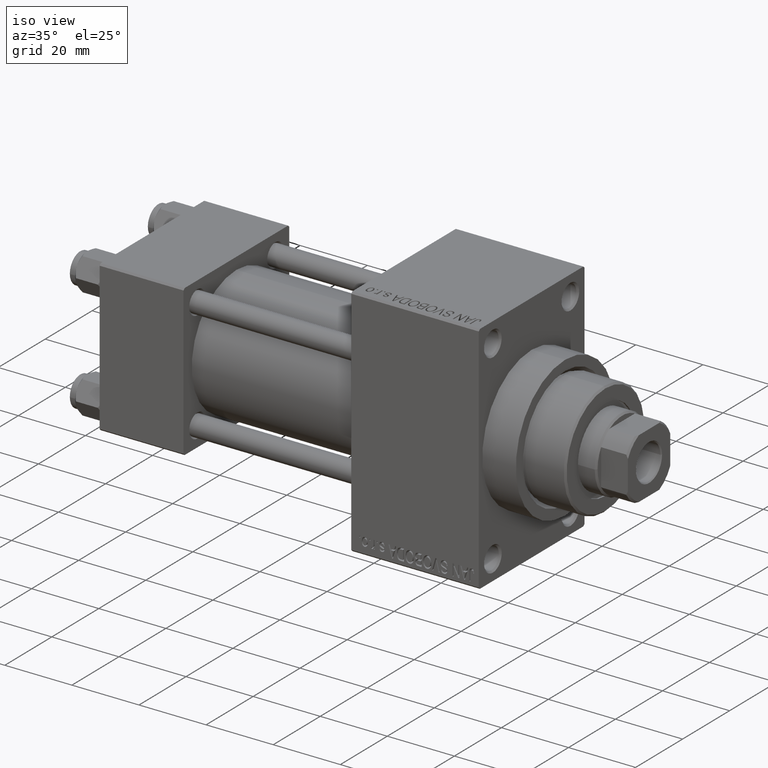
[diagram: clean part render]
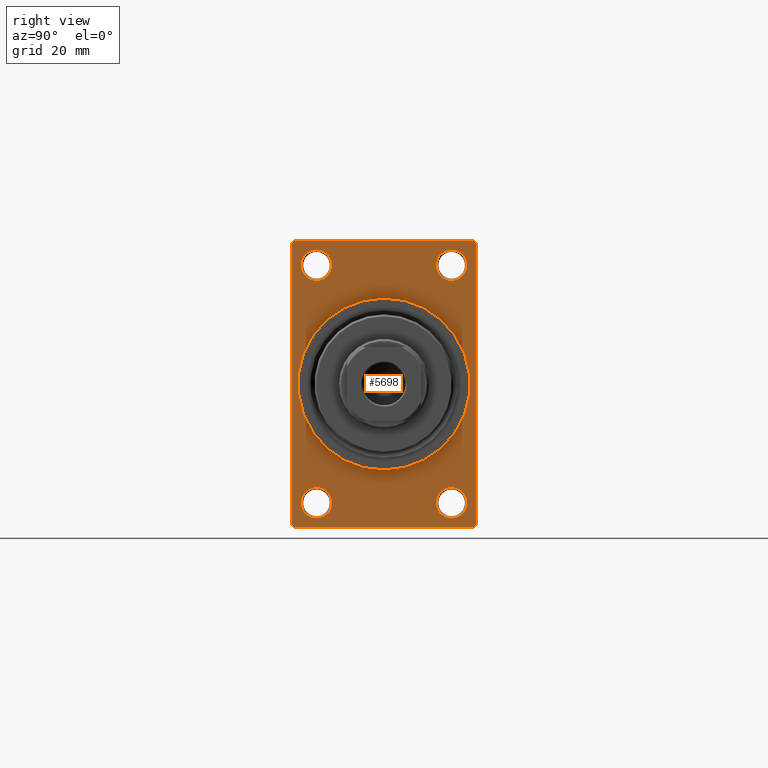
[diagram: tour spotlight — one face highlighted and labeled with its STEP entity id]
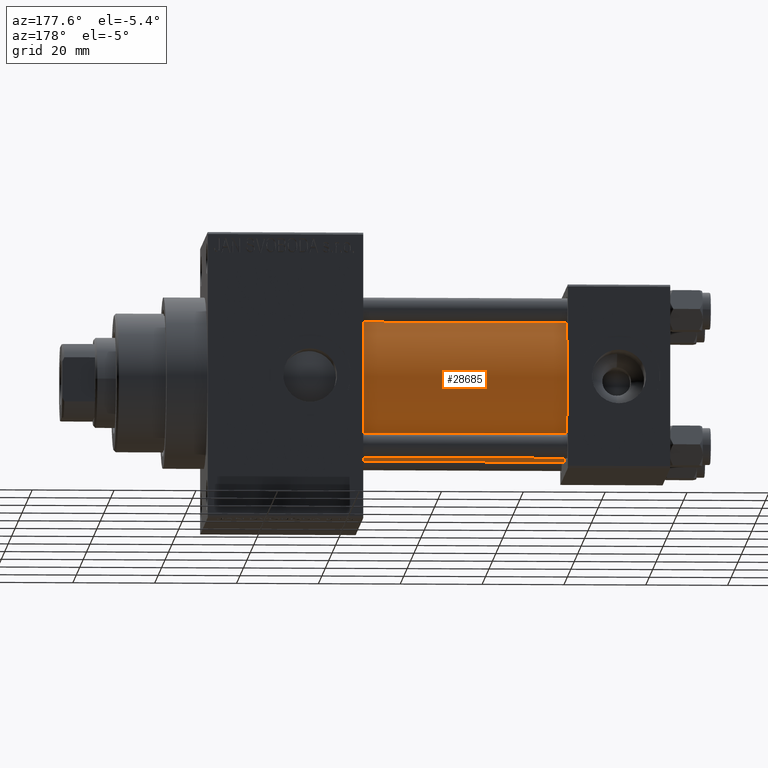
[diagram: tour spotlight — one face highlighted and labeled with its STEP entity id]
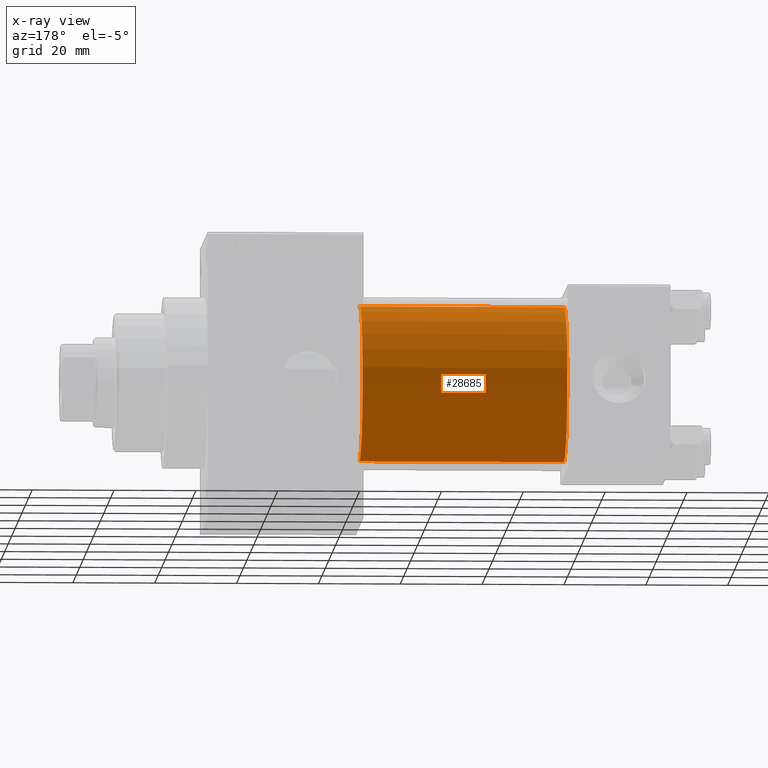
[diagram: x-ray of the same camera — body ghosted, this tour face saturated]
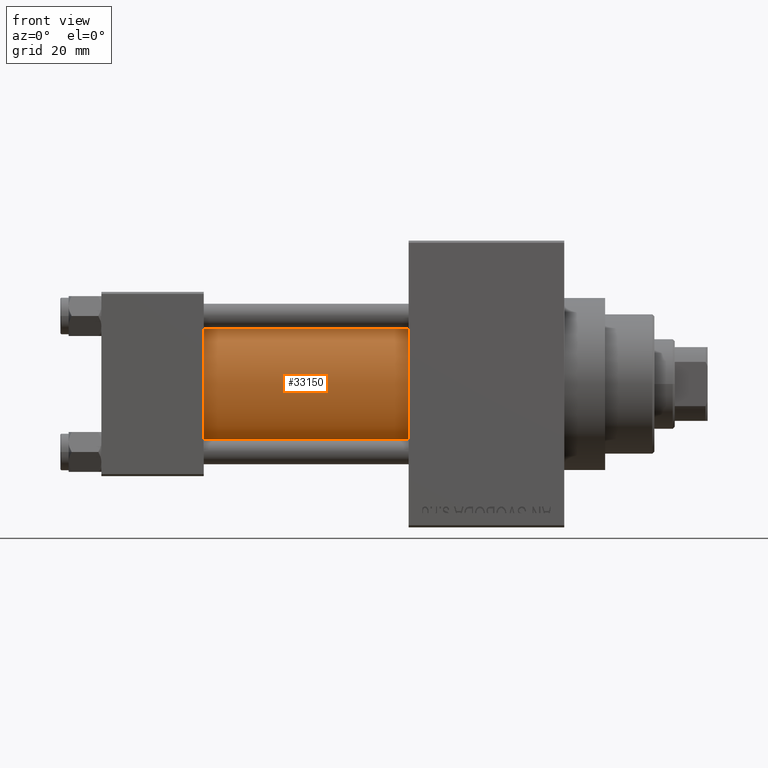
[diagram: tour spotlight — one face highlighted and labeled with its STEP entity id]
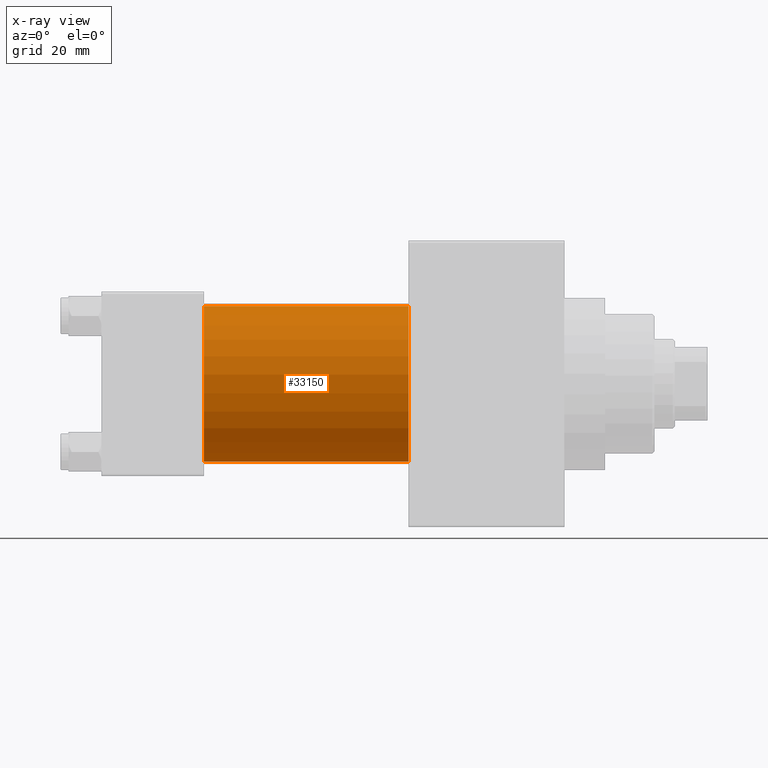
[diagram: x-ray of the same camera — body ghosted, this tour face saturated]
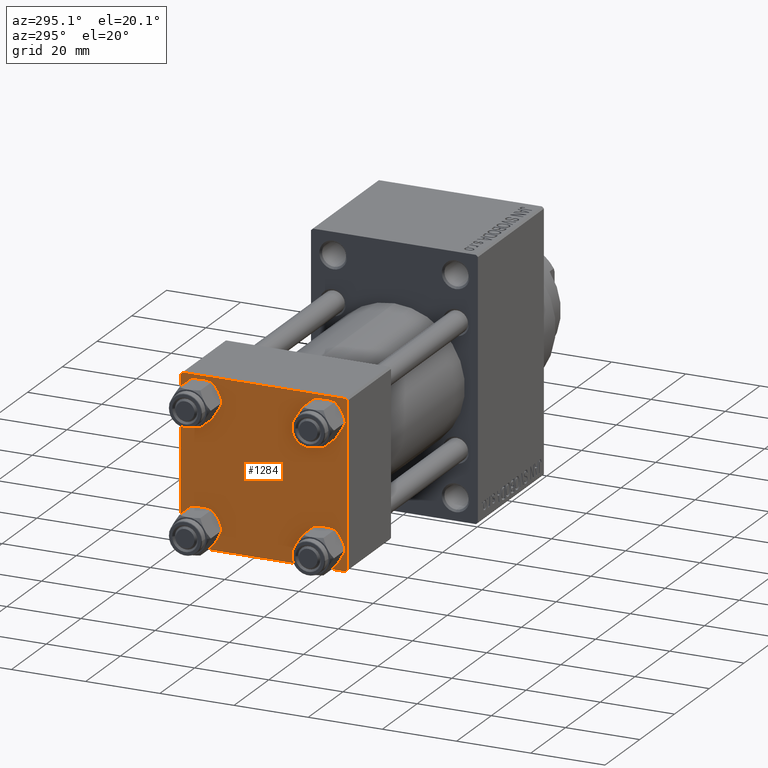
[diagram: tour spotlight — one face highlighted and labeled with its STEP entity id]
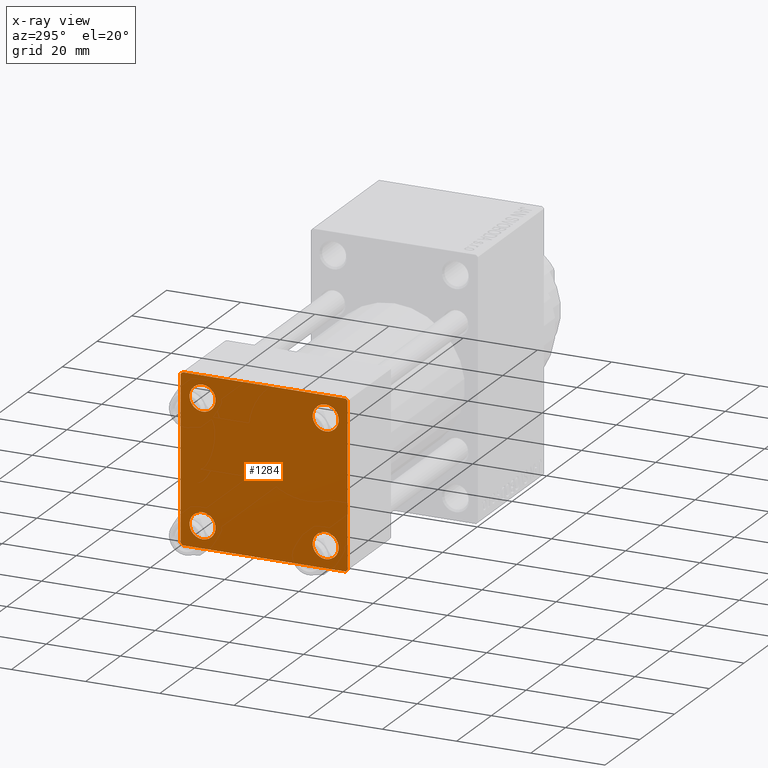
[diagram: x-ray of the same camera — body ghosted, this tour face saturated]
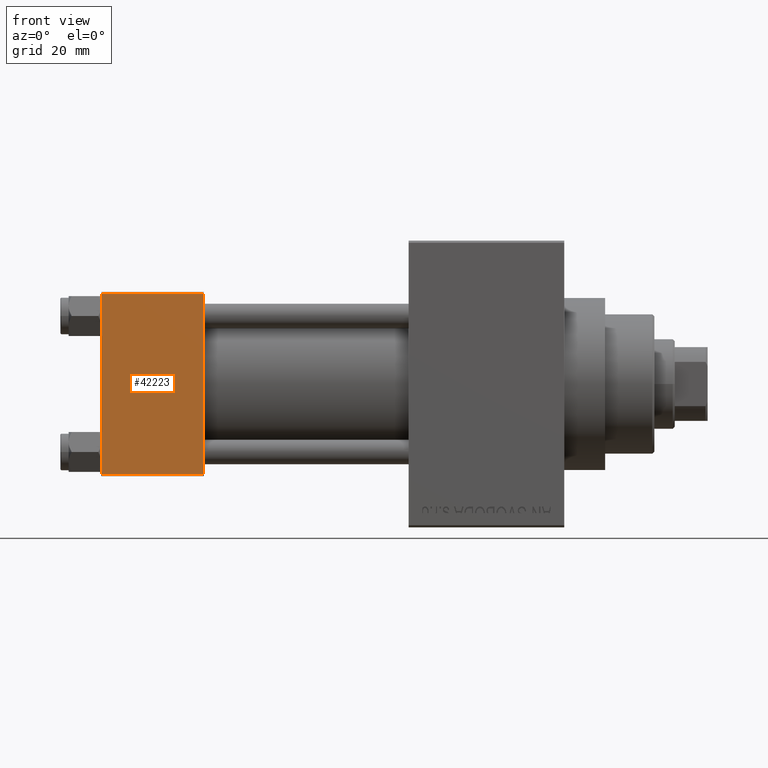
[diagram: tour spotlight — one face highlighted and labeled with its STEP entity id]
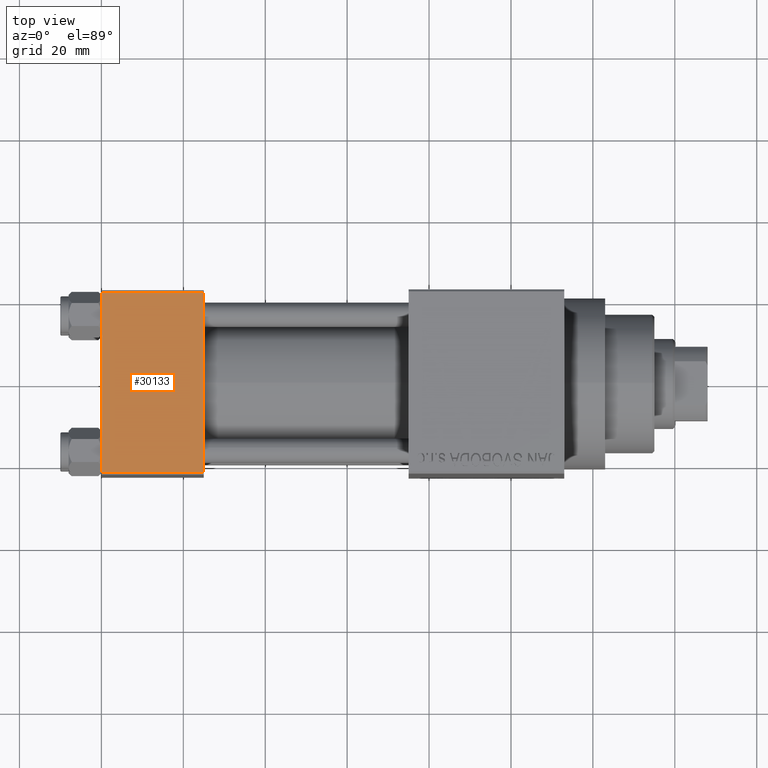
[diagram: tour spotlight — one face highlighted and labeled with its STEP entity id]
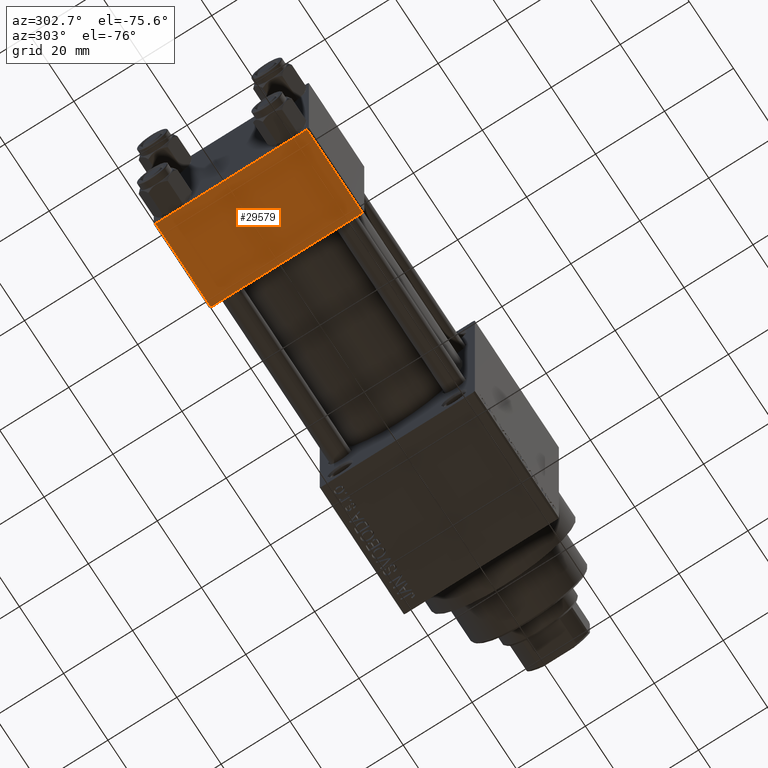
[diagram: tour spotlight — one face highlighted and labeled with its STEP entity id]
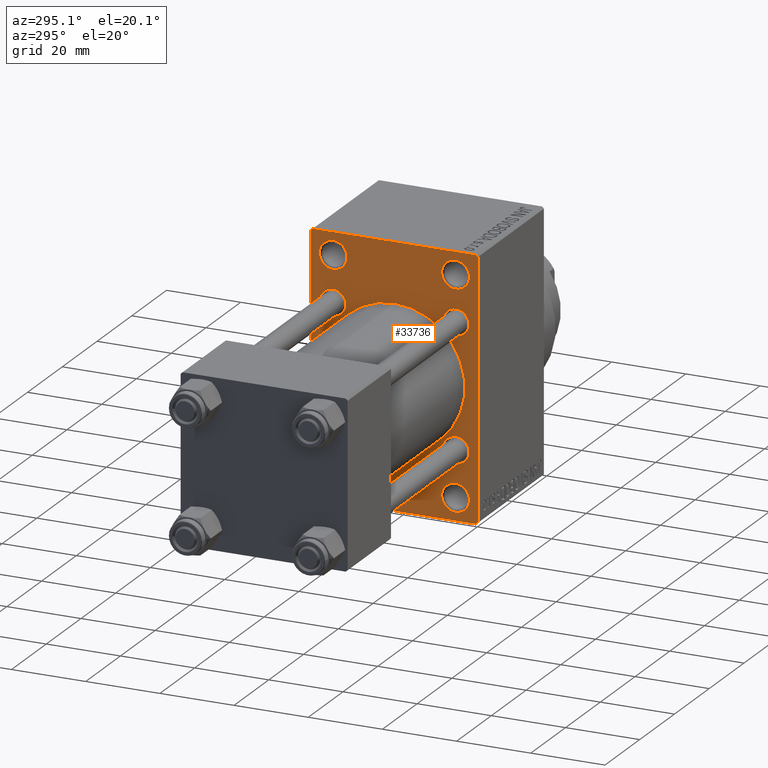
[diagram: tour spotlight — one face highlighted and labeled with its STEP entity id]
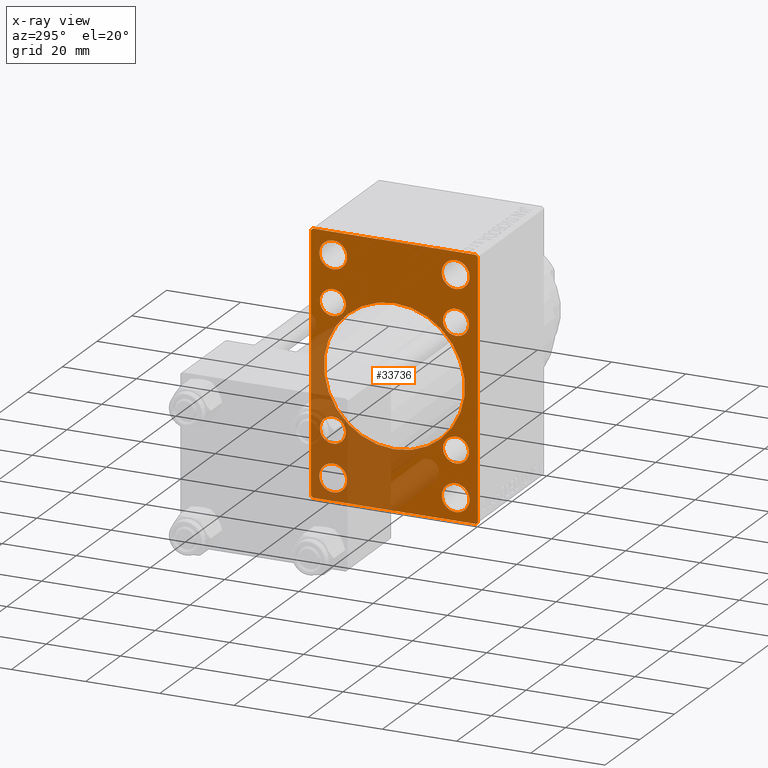
[diagram: x-ray of the same camera — body ghosted, this tour face saturated]
A machine part: a face-by-face anatomy tour. The part has 1105 B-rep faces; the first image is the clean iso view, then the 8 largest visible faces are spotlighted one at a time (largest first), each with its STEP entity span.

Face 1 — right view, entity #5698. In plain terms, the highlighted planar face has unit normal (-1, 0, 0).
Definition (entity closure, byte-faithful):
#42 = EDGE_CURVE ( 'NONE', #27356, #37661, #3917, .T. ) ;
#414 = CIRCLE ( 'NONE', #45322, 3.750000000000069278 ) ;
#465 = VERTEX_POINT ( 'NONE', #24290 ) ;
#1113 = EDGE_CURVE ( 'NONE', #39089, #5776, #414, .T. ) ;
#1147 = FACE_BOUND ( 'NONE', #39695, .T. ) ;
#1170 = AXIS2_PLACEMENT_3D ( 'NONE', #23574, #6171, #9757 ) ;
#2445 = DIRECTION ( 'NONE',  ( 0.000000000000000000, -1.000000000000000000, 0.000000000000000000 ) ) ;
#2702 = EDGE_LOOP ( 'NONE', ( #13380, #20122 ) ) ;
#2789 = DIRECTION ( 'NONE',  ( 0.000000000000000000, 0.000000000000000000, -1.000000000000000000 ) ) ;
#3267 = CARTESIAN_POINT ( 'NONE',  ( 113.0000000000000142, 0.000000000000000000, 0.000000000000000000 ) ) ;
#3340 = ORIENTED_EDGE ( 'NONE', *, *, #41836, .F. ) ;
#3714 = VECTOR ( 'NONE', #41129, 999.9999999999998863 ) ;
#3917 = LINE ( 'NONE', #7975, #3714 ) ;
#4007 = VECTOR ( 'NONE', #15586, 1000.000000000000114 ) ;
#4101 = ORIENTED_EDGE ( 'NONE', *, *, #27335, .T. ) ;
#4119 = EDGE_CURVE ( 'NONE', #41053, #27356, #21152, .T. ) ;
#4355 = DIRECTION ( 'NONE',  ( 0.000000000000000000, 0.000000000000000000, -1.000000000000000000 ) ) ;
#4528 = LINE ( 'NONE', #19070, #40410 ) ;
#5196 = CARTESIAN_POINT ( 'NONE',  ( 113.0000000000000142, -16.50000000000000000, 32.75000000000007816 ) ) ;
#5435 = ORIENTED_EDGE ( 'NONE', *, *, #31701, .T. ) ;
#5698 = ADVANCED_FACE ( 'NONE', ( #37891, #8777, #26418, #1147, #22361, #37188 ), #23314, .F. ) ;
#5776 = VERTEX_POINT ( 'NONE', #38840 ) ;
#5807 = DIRECTION ( 'NONE',  ( -1.000000000000000000, -0.000000000000000000, -0.000000000000000000 ) ) ;
#6108 = DIRECTION ( 'NONE',  ( 0.000000000000000000, -1.000000000000000000, 0.000000000000000000 ) ) ;
#6171 = DIRECTION ( 'NONE',  ( -1.000000000000000000, -0.000000000000000000, -0.000000000000000000 ) ) ;
#6307 = DIRECTION ( 'NONE',  ( 0.000000000000000000, 0.000000000000000000, -1.000000000000000000 ) ) ;
#6761 = EDGE_LOOP ( 'NONE', ( #3340, #10580 ) ) ;
#6826 = CARTESIAN_POINT ( 'NONE',  ( 113.0000000000000142, -16.50000000000000000, 29.00000000000000711 ) ) ;
#7403 = AXIS2_PLACEMENT_3D ( 'NONE', #32560, #17082, #46439 ) ;
#7509 = VERTEX_POINT ( 'NONE', #13132 ) ;
#7975 = CARTESIAN_POINT ( 'NONE',  ( 113.0000000000000142, -21.99999999999998934, -35.00000000000000000 ) ) ;
#8251 = CARTESIAN_POINT ( 'NONE',  ( 113.0000000000000142, -21.99999999999998934, 35.00000000000000000 ) ) ;
#8268 = DIRECTION ( 'NONE',  ( 0.000000000000000000, 0.000000000000000000, 1.000000000000000000 ) ) ;
#8777 = FACE_BOUND ( 'NONE', #11833, .T. ) ;
#8833 = AXIS2_PLACEMENT_3D ( 'NONE', #37979, #30085, #18868 ) ;
#9522 = DIRECTION ( 'NONE',  ( -0.000000000000000000, 0.7071067811865474617, 0.7071067811865474617 ) ) ;
#9757 = DIRECTION ( 'NONE',  ( 0.000000000000000000, 0.000000000000000000, 1.000000000000000000 ) ) ;
#10518 = EDGE_CURVE ( 'NONE', #13117, #41053, #4528, .T. ) ;
#10580 = ORIENTED_EDGE ( 'NONE', *, *, #15986, .F. ) ;
#10629 = LINE ( 'NONE', #31615, #13425 ) ;
#11201 = CIRCLE ( 'NONE', #14283, 3.750000000000069278 ) ;
#11282 = DIRECTION ( 'NONE',  ( 1.000000000000000000, 0.000000000000000000, 0.000000000000000000 ) ) ;
#11625 = AXIS2_PLACEMENT_3D ( 'NONE', #3267, #42635, #32354 ) ;
#11833 = EDGE_LOOP ( 'NONE', ( #45849, #30741 ) ) ;
#12070 = DIRECTION ( 'NONE',  ( -1.000000000000000000, -0.000000000000000000, -0.000000000000000000 ) ) ;
#12441 = DIRECTION ( 'NONE',  ( -1.000000000000000000, -0.000000000000000000, -0.000000000000000000 ) ) ;
#12749 = CARTESIAN_POINT ( 'NONE',  ( 113.0000000000000142, 22.49999999999999645, 35.00000000000000000 ) ) ;
#12855 = CARTESIAN_POINT ( 'NONE',  ( 113.0000000000000142, 22.49999999999999645, -34.50000000000000000 ) ) ;
#12897 = VECTOR ( 'NONE', #2789, 1000.000000000000000 ) ;
#13117 = VERTEX_POINT ( 'NONE', #8251 ) ;
#13132 = CARTESIAN_POINT ( 'NONE',  ( 113.0000000000000142, 0.000000000000000000, 21.00000000000000000 ) ) ;
#13380 = ORIENTED_EDGE ( 'NONE', *, *, #44674, .T. ) ;
#13425 = VECTOR ( 'NONE', #6108, 1000.000000000000000 ) ;
#13493 = CIRCLE ( 'NONE', #21903, 21.00000000000000000 ) ;
#13814 = ORIENTED_EDGE ( 'NONE', *, *, #45555, .T. ) ;
#13858 = EDGE_LOOP ( 'NONE', ( #19615, #23143 ) ) ;
#14248 = VECTOR ( 'NONE', #9522, 1000.000000000000114 ) ;
#14283 = AXIS2_PLACEMENT_3D ( 'NONE', #6826, #31617, #24228 ) ;
#15586 = DIRECTION ( 'NONE',  ( 0.000000000000000000, -0.7071067811865474617, 0.7071067811865474617 ) ) ;
#15687 = DIRECTION ( 'NONE',  ( -1.000000000000000000, 0.000000000000000000, -0.000000000000000000 ) ) ;
#15804 = CARTESIAN_POINT ( 'NONE',  ( 113.0000000000000142, 0.000000000000000000, 0.000000000000000000 ) ) ;
#15986 = EDGE_CURVE ( 'NONE', #32366, #7509, #45922, .T. ) ;
#16209 = AXIS2_PLACEMENT_3D ( 'NONE', #44518, #12070, #8268 ) ;
#16516 = CARTESIAN_POINT ( 'NONE',  ( 113.0000000000000142, 22.49999999999999645, 35.00000000000000000 ) ) ;
#17082 = DIRECTION ( 'NONE',  ( -1.000000000000000000, -0.000000000000000000, -0.000000000000000000 ) ) ;
#17944 = VERTEX_POINT ( 'NONE', #33001 ) ;
#18626 = ORIENTED_EDGE ( 'NONE', *, *, #4119, .T. ) ;
#18814 = CARTESIAN_POINT ( 'NONE',  ( 113.0000000000000142, 2.571758278209441661E-15, -21.00000000000000000 ) ) ;
#18868 = DIRECTION ( 'NONE',  ( 0.000000000000000000, 0.000000000000000000, 1.000000000000000000 ) ) ;
#19070 = CARTESIAN_POINT ( 'NONE',  ( 113.0000000000000142, -22.50000000000000355, 34.50000000000000000 ) ) ;
#19238 = CARTESIAN_POINT ( 'NONE',  ( 113.0000000000000142, 22.49999999999999645, -34.50000000000000000 ) ) ;
#19502 = CARTESIAN_POINT ( 'NONE',  ( 113.0000000000000142, 0.000000000000000000, 0.000000000000000000 ) ) ;
#19615 = ORIENTED_EDGE ( 'NONE', *, *, #31415, .T. ) ;
#19648 = VERTEX_POINT ( 'NONE', #40312 ) ;
#20122 = ORIENTED_EDGE ( 'NONE', *, *, #1113, .T. ) ;
#21019 = CARTESIAN_POINT ( 'NONE',  ( 113.0000000000000142, -16.50000000000000000, 29.00000000000000711 ) ) ;
#21152 = LINE ( 'NONE', #35486, #12897 ) ;
#21674 = VECTOR ( 'NONE', #2445, 1000.000000000000000 ) ;
#21903 = AXIS2_PLACEMENT_3D ( 'NONE', #15804, #11282, #4355 ) ;
#22344 = DIRECTION ( 'NONE',  ( 0.000000000000000000, 0.000000000000000000, 1.000000000000000000 ) ) ;
#22361 = FACE_BOUND ( 'NONE', #6761, .T. ) ;
#22777 = EDGE_CURVE ( 'NONE', #17944, #36506, #36145, .T. ) ;
#22860 = AXIS2_PLACEMENT_3D ( 'NONE', #19502, #15687, #37419 ) ;
#22980 = CARTESIAN_POINT ( 'NONE',  ( 113.0000000000000142, 21.99999999999999645, 35.00000000000000000 ) ) ;
#23143 = ORIENTED_EDGE ( 'NONE', *, *, #22777, .T. ) ;
#23203 = ORIENTED_EDGE ( 'NONE', *, *, #35282, .F. ) ;
#23213 = LINE ( 'NONE', #22980, #4007 ) ;
#23314 = PLANE ( 'NONE',  #22860 ) ;
#23574 = CARTESIAN_POINT ( 'NONE',  ( 113.0000000000000142, -16.50000000000000000, -28.99999999999999289 ) ) ;
#23746 = CARTESIAN_POINT ( 'NONE',  ( 113.0000000000000142, -21.99999999999997513, -35.00000000000000000 ) ) ;
#24228 = DIRECTION ( 'NONE',  ( 0.000000000000000000, 0.000000000000000000, 1.000000000000000000 ) ) ;
#24290 = CARTESIAN_POINT ( 'NONE',  ( 113.0000000000000142, -16.50000000000000000, -25.24999999999992184 ) ) ;
#24594 = VERTEX_POINT ( 'NONE', #46643 ) ;
#25393 = VERTEX_POINT ( 'NONE', #28497 ) ;
#26184 = EDGE_CURVE ( 'NONE', #28240, #465, #27032, .T. ) ;
#26418 = FACE_BOUND ( 'NONE', #13858, .T. ) ;
#26729 = VERTEX_POINT ( 'NONE', #35457 ) ;
#27032 = CIRCLE ( 'NONE', #1170, 3.750000000000076383 ) ;
#27335 = EDGE_CURVE ( 'NONE', #24594, #19648, #45371, .T. ) ;
#27356 = VERTEX_POINT ( 'NONE', #37041 ) ;
#28078 = CARTESIAN_POINT ( 'NONE',  ( 113.0000000000000142, 16.50000000000000000, -32.75000000000007105 ) ) ;
#28240 = VERTEX_POINT ( 'NONE', #36126 ) ;
#28399 = CIRCLE ( 'NONE', #16209, 3.750000000000076383 ) ;
#28497 = CARTESIAN_POINT ( 'NONE',  ( 113.0000000000000142, 22.49999999999999645, 34.50000000000000000 ) ) ;
#30085 = DIRECTION ( 'NONE',  ( -1.000000000000000000, -0.000000000000000000, -0.000000000000000000 ) ) ;
#30741 = ORIENTED_EDGE ( 'NONE', *, *, #46041, .T. ) ;
#30807 = VECTOR ( 'NONE', #6307, 1000.000000000000000 ) ;
#31415 = EDGE_CURVE ( 'NONE', #36506, #17944, #28399, .T. ) ;
#31615 = CARTESIAN_POINT ( 'NONE',  ( 113.0000000000000142, 22.49999999999999645, -35.00000000000000000 ) ) ;
#31617 = DIRECTION ( 'NONE',  ( -1.000000000000000000, -0.000000000000000000, -0.000000000000000000 ) ) ;
#31701 = EDGE_CURVE ( 'NONE', #25393, #26729, #23213, .T. ) ;
#32053 = VERTEX_POINT ( 'NONE', #46717 ) ;
#32259 = ORIENTED_EDGE ( 'NONE', *, *, #40244, .F. ) ;
#32354 = DIRECTION ( 'NONE',  ( 0.000000000000000000, 0.000000000000000000, -1.000000000000000000 ) ) ;
#32366 = VERTEX_POINT ( 'NONE', #18814 ) ;
#32560 = CARTESIAN_POINT ( 'NONE',  ( 113.0000000000000142, 16.50000000000000000, 29.00000000000000355 ) ) ;
#32578 = AXIS2_PLACEMENT_3D ( 'NONE', #33665, #12441, #41556 ) ;
#33001 = CARTESIAN_POINT ( 'NONE',  ( 113.0000000000000142, 16.50000000000000000, -25.24999999999992184 ) ) ;
#33620 = DIRECTION ( 'NONE',  ( -0.000000000000000000, -0.7071067811865474617, -0.7071067811865474617 ) ) ;
#33665 = CARTESIAN_POINT ( 'NONE',  ( 113.0000000000000142, -16.50000000000000000, -28.99999999999999289 ) ) ;
#34911 = DIRECTION ( 'NONE',  ( 0.000000000000000000, 0.000000000000000000, 1.000000000000000000 ) ) ;
#35134 = LINE ( 'NONE', #16516, #21674 ) ;
#35277 = LINE ( 'NONE', #12855, #14248 ) ;
#35282 = EDGE_CURVE ( 'NONE', #25393, #45358, #45434, .T. ) ;
#35346 = AXIS2_PLACEMENT_3D ( 'NONE', #41833, #5807, #34911 ) ;
#35457 = CARTESIAN_POINT ( 'NONE',  ( 113.0000000000000142, 21.99999999999999645, 35.00000000000000000 ) ) ;
#35486 = CARTESIAN_POINT ( 'NONE',  ( 113.0000000000000142, -22.50000000000000355, 35.00000000000000000 ) ) ;
#35593 = DIRECTION ( 'NONE',  ( -1.000000000000000000, -0.000000000000000000, -0.000000000000000000 ) ) ;
#35849 = EDGE_CURVE ( 'NONE', #26729, #13117, #35134, .T. ) ;
#36126 = CARTESIAN_POINT ( 'NONE',  ( 113.0000000000000142, -16.50000000000000000, -32.75000000000007105 ) ) ;
#36145 = CIRCLE ( 'NONE', #35346, 3.750000000000076383 ) ;
#36368 = CIRCLE ( 'NONE', #7403, 3.750000000000072831 ) ;
#36506 = VERTEX_POINT ( 'NONE', #28078 ) ;
#37041 = CARTESIAN_POINT ( 'NONE',  ( 113.0000000000000142, -22.50000000000000355, -34.49999999999997158 ) ) ;
#37188 = FACE_OUTER_BOUND ( 'NONE', #40621, .T. ) ;
#37419 = DIRECTION ( 'NONE',  ( -0.000000000000000000, 0.000000000000000000, 1.000000000000000000 ) ) ;
#37661 = VERTEX_POINT ( 'NONE', #23746 ) ;
#37733 = ORIENTED_EDGE ( 'NONE', *, *, #10518, .T. ) ;
#37891 = FACE_BOUND ( 'NONE', #2702, .T. ) ;
#37979 = CARTESIAN_POINT ( 'NONE',  ( 113.0000000000000142, 16.50000000000000000, 29.00000000000000355 ) ) ;
#38840 = CARTESIAN_POINT ( 'NONE',  ( 113.0000000000000142, -16.50000000000000000, 25.24999999999993960 ) ) ;
#39089 = VERTEX_POINT ( 'NONE', #5196 ) ;
#39157 = ORIENTED_EDGE ( 'NONE', *, *, #35849, .T. ) ;
#39695 = EDGE_LOOP ( 'NONE', ( #4101, #13814 ) ) ;
#40244 = EDGE_CURVE ( 'NONE', #32053, #37661, #10629, .T. ) ;
#40312 = CARTESIAN_POINT ( 'NONE',  ( 113.0000000000000142, 16.50000000000000000, 32.75000000000007816 ) ) ;
#40410 = VECTOR ( 'NONE', #33620, 1000.000000000000114 ) ;
#40621 = EDGE_LOOP ( 'NONE', ( #18626, #44315, #32259, #41008, #23203, #5435, #39157, #37733 ) ) ;
#41008 = ORIENTED_EDGE ( 'NONE', *, *, #41354, .T. ) ;
#41053 = VERTEX_POINT ( 'NONE', #42968 ) ;
#41129 = DIRECTION ( 'NONE',  ( 0.000000000000000000, 0.7071067811865376918, -0.7071067811865574537 ) ) ;
#41354 = EDGE_CURVE ( 'NONE', #32053, #45358, #35277, .T. ) ;
#41556 = DIRECTION ( 'NONE',  ( 0.000000000000000000, 0.000000000000000000, 1.000000000000000000 ) ) ;
#41833 = CARTESIAN_POINT ( 'NONE',  ( 113.0000000000000142, 16.50000000000000000, -28.99999999999999289 ) ) ;
#41836 = EDGE_CURVE ( 'NONE', #7509, #32366, #13493, .T. ) ;
#42466 = CIRCLE ( 'NONE', #32578, 3.750000000000076383 ) ;
#42635 = DIRECTION ( 'NONE',  ( 1.000000000000000000, 0.000000000000000000, 0.000000000000000000 ) ) ;
#42968 = CARTESIAN_POINT ( 'NONE',  ( 113.0000000000000142, -22.50000000000000355, 34.50000000000000000 ) ) ;
#44315 = ORIENTED_EDGE ( 'NONE', *, *, #42, .T. ) ;
#44518 = CARTESIAN_POINT ( 'NONE',  ( 113.0000000000000142, 16.50000000000000000, -28.99999999999999289 ) ) ;
#44674 = EDGE_CURVE ( 'NONE', #5776, #39089, #11201, .T. ) ;
#45322 = AXIS2_PLACEMENT_3D ( 'NONE', #21019, #35593, #22344 ) ;
#45358 = VERTEX_POINT ( 'NONE', #19238 ) ;
#45371 = CIRCLE ( 'NONE', #8833, 3.750000000000072831 ) ;
#45434 = LINE ( 'NONE', #12749, #30807 ) ;
#45555 = EDGE_CURVE ( 'NONE', #19648, #24594, #36368, .T. ) ;
#45849 = ORIENTED_EDGE ( 'NONE', *, *, #26184, .T. ) ;
#45922 = CIRCLE ( 'NONE', #11625, 21.00000000000000000 ) ;
#46041 = EDGE_CURVE ( 'NONE', #465, #28240, #42466, .T. ) ;
#46439 = DIRECTION ( 'NONE',  ( 0.000000000000000000, 0.000000000000000000, 1.000000000000000000 ) ) ;
#46643 = CARTESIAN_POINT ( 'NONE',  ( 113.0000000000000142, 16.50000000000000000, 25.24999999999993250 ) ) ;
#46717 = CARTESIAN_POINT ( 'NONE',  ( 113.0000000000000142, 21.99999999999999645, -35.00000000000000000 ) ) ;

Face 2 — auxiliary view, entity #28685. An x-ray twin of the same camera follows (body ghosted, this face saturated) — the face is partly hidden behind the body. In plain terms, the highlighted cylindrical surface (partial cylindrical patch) has radius 19 mm, axis along (-1, -0, -0).
Definition (entity closure, byte-faithful):
#1982 = AXIS2_PLACEMENT_3D ( 'NONE', #8580, #12147, #30035 ) ;
#4518 = CYLINDRICAL_SURFACE ( 'NONE', #1982, 19.00000000000000000 ) ;
#5148 = CARTESIAN_POINT ( 'NONE',  ( 25.00000000000000000, -2.752562955852396712E-16, -19.00000000000000000 ) ) ;
#5308 = EDGE_CURVE ( 'NONE', #19952, #21568, #31586, .T. ) ;
#6457 = ORIENTED_EDGE ( 'NONE', *, *, #30781, .T. ) ;
#7280 = EDGE_CURVE ( 'NONE', #30346, #10741, #14373, .T. ) ;
#8580 = CARTESIAN_POINT ( 'NONE',  ( 75.00000000000001421, -2.602085213965210642E-15, 0.000000000000000000 ) ) ;
#10741 = VERTEX_POINT ( 'NONE', #18958 ) ;
#10982 = AXIS2_PLACEMENT_3D ( 'NONE', #32537, #40191, #47116 ) ;
#11152 = CARTESIAN_POINT ( 'NONE',  ( 75.00000000000001421, -2.752562955852396712E-16, -19.00000000000000000 ) ) ;
#11712 = CIRCLE ( 'NONE', #23896, 19.00000000000000000 ) ;
#12147 = DIRECTION ( 'NONE',  ( -1.000000000000000000, -0.000000000000000000, -0.000000000000000000 ) ) ;
#13708 = CARTESIAN_POINT ( 'NONE',  ( 75.00000000000001421, -2.752562955852396712E-16, -19.00000000000000000 ) ) ;
#14373 = LINE ( 'NONE', #32009, #15270 ) ;
#14977 = ORIENTED_EDGE ( 'NONE', *, *, #7280, .F. ) ;
#15270 = VECTOR ( 'NONE', #39896, 1000.000000000000000 ) ;
#18958 = CARTESIAN_POINT ( 'NONE',  ( 25.00000000000000000, -2.602085213965210642E-15, 19.00000000000000000 ) ) ;
#19952 = VERTEX_POINT ( 'NONE', #11152 ) ;
#21568 = VERTEX_POINT ( 'NONE', #5148 ) ;
#22639 = FACE_OUTER_BOUND ( 'NONE', #46677, .T. ) ;
#23670 = CARTESIAN_POINT ( 'NONE',  ( 25.00000000000000000, -2.602085213965210642E-15, 0.000000000000000000 ) ) ;
#23896 = AXIS2_PLACEMENT_3D ( 'NONE', #23670, #34644, #38488 ) ;
#24725 = EDGE_CURVE ( 'NONE', #19952, #30346, #37690, .T. ) ;
#25377 = DIRECTION ( 'NONE',  ( -1.000000000000000000, -0.000000000000000000, -0.000000000000000000 ) ) ;
#28685 = ADVANCED_FACE ( 'NONE', ( #22639 ), #4518, .T. ) ;
#30035 = DIRECTION ( 'NONE',  ( 0.000000000000000000, 0.000000000000000000, 1.000000000000000000 ) ) ;
#30346 = VERTEX_POINT ( 'NONE', #43177 ) ;
#30781 = EDGE_CURVE ( 'NONE', #21568, #10741, #11712, .T. ) ;
#31586 = LINE ( 'NONE', #13708, #38835 ) ;
#32009 = CARTESIAN_POINT ( 'NONE',  ( 75.00000000000001421, -2.602085213965210642E-15, 19.00000000000000000 ) ) ;
#32537 = CARTESIAN_POINT ( 'NONE',  ( 75.00000000000001421, -2.602085213965210642E-15, 0.000000000000000000 ) ) ;
#34644 = DIRECTION ( 'NONE',  ( 1.000000000000000000, -0.000000000000000000, 0.000000000000000000 ) ) ;
#37690 = CIRCLE ( 'NONE', #10982, 19.00000000000000000 ) ;
#38488 = DIRECTION ( 'NONE',  ( 0.000000000000000000, 0.000000000000000000, 1.000000000000000000 ) ) ;
#38835 = VECTOR ( 'NONE', #25377, 1000.000000000000000 ) ;
#39896 = DIRECTION ( 'NONE',  ( -1.000000000000000000, -0.000000000000000000, -0.000000000000000000 ) ) ;
#40191 = DIRECTION ( 'NONE',  ( 1.000000000000000000, 0.000000000000000000, 0.000000000000000000 ) ) ;
#40585 = ORIENTED_EDGE ( 'NONE', *, *, #24725, .F. ) ;
#41258 = ORIENTED_EDGE ( 'NONE', *, *, #5308, .T. ) ;
#43177 = CARTESIAN_POINT ( 'NONE',  ( 75.00000000000001421, -2.602085213965210642E-15, 19.00000000000000000 ) ) ;
#46677 = EDGE_LOOP ( 'NONE', ( #40585, #41258, #6457, #14977 ) ) ;
#47116 = DIRECTION ( 'NONE',  ( 0.000000000000000000, 0.000000000000000000, -1.000000000000000000 ) ) ;

Face 3 — front view, entity #33150. An x-ray twin of the same camera follows (body ghosted, this face saturated) — the face is partly hidden behind the body. In plain terms, the highlighted cylindrical surface (partial cylindrical patch) has radius 19 mm, axis along (-1, -0, -0).
Definition (entity closure, byte-faithful):
#1218 = EDGE_CURVE ( 'NONE', #30346, #19952, #29562, .T. ) ;
#1599 = DIRECTION ( 'NONE',  ( 0.000000000000000000, 0.000000000000000000, -1.000000000000000000 ) ) ;
#2016 = ORIENTED_EDGE ( 'NONE', *, *, #5308, .F. ) ;
#5148 = CARTESIAN_POINT ( 'NONE',  ( 25.00000000000000000, -2.752562955852396712E-16, -19.00000000000000000 ) ) ;
#5308 = EDGE_CURVE ( 'NONE', #19952, #21568, #31586, .T. ) ;
#6751 = AXIS2_PLACEMENT_3D ( 'NONE', #22830, #26639, #1599 ) ;
#7280 = EDGE_CURVE ( 'NONE', #30346, #10741, #14373, .T. ) ;
#10741 = VERTEX_POINT ( 'NONE', #18958 ) ;
#11152 = CARTESIAN_POINT ( 'NONE',  ( 75.00000000000001421, -2.752562955852396712E-16, -19.00000000000000000 ) ) ;
#11325 = DIRECTION ( 'NONE',  ( -1.000000000000000000, -0.000000000000000000, -0.000000000000000000 ) ) ;
#13708 = CARTESIAN_POINT ( 'NONE',  ( 75.00000000000001421, -2.752562955852396712E-16, -19.00000000000000000 ) ) ;
#14373 = LINE ( 'NONE', #32009, #15270 ) ;
#15139 = FACE_OUTER_BOUND ( 'NONE', #22461, .T. ) ;
#15270 = VECTOR ( 'NONE', #39896, 1000.000000000000000 ) ;
#16494 = ORIENTED_EDGE ( 'NONE', *, *, #1218, .F. ) ;
#18683 = DIRECTION ( 'NONE',  ( 0.000000000000000000, 0.000000000000000000, 1.000000000000000000 ) ) ;
#18958 = CARTESIAN_POINT ( 'NONE',  ( 25.00000000000000000, -2.602085213965210642E-15, 19.00000000000000000 ) ) ;
#19952 = VERTEX_POINT ( 'NONE', #11152 ) ;
#20091 = AXIS2_PLACEMENT_3D ( 'NONE', #28775, #30365, #18683 ) ;
#21568 = VERTEX_POINT ( 'NONE', #5148 ) ;
#22461 = EDGE_LOOP ( 'NONE', ( #2016, #16494, #27602, #27694 ) ) ;
#22830 = CARTESIAN_POINT ( 'NONE',  ( 75.00000000000001421, -2.602085213965210642E-15, 0.000000000000000000 ) ) ;
#24668 = AXIS2_PLACEMENT_3D ( 'NONE', #47136, #11325, #25416 ) ;
#25377 = DIRECTION ( 'NONE',  ( -1.000000000000000000, -0.000000000000000000, -0.000000000000000000 ) ) ;
#25416 = DIRECTION ( 'NONE',  ( 0.000000000000000000, 0.000000000000000000, 1.000000000000000000 ) ) ;
#26639 = DIRECTION ( 'NONE',  ( 1.000000000000000000, 0.000000000000000000, 0.000000000000000000 ) ) ;
#27602 = ORIENTED_EDGE ( 'NONE', *, *, #7280, .T. ) ;
#27694 = ORIENTED_EDGE ( 'NONE', *, *, #30615, .T. ) ;
#28775 = CARTESIAN_POINT ( 'NONE',  ( 25.00000000000000000, -2.602085213965210642E-15, 0.000000000000000000 ) ) ;
#29562 = CIRCLE ( 'NONE', #6751, 19.00000000000000000 ) ;
#30346 = VERTEX_POINT ( 'NONE', #43177 ) ;
#30365 = DIRECTION ( 'NONE',  ( 1.000000000000000000, -0.000000000000000000, 0.000000000000000000 ) ) ;
#30615 = EDGE_CURVE ( 'NONE', #10741, #21568, #36143, .T. ) ;
#31586 = LINE ( 'NONE', #13708, #38835 ) ;
#32009 = CARTESIAN_POINT ( 'NONE',  ( 75.00000000000001421, -2.602085213965210642E-15, 19.00000000000000000 ) ) ;
#33150 = ADVANCED_FACE ( 'NONE', ( #15139 ), #43791, .T. ) ;
#36143 = CIRCLE ( 'NONE', #20091, 19.00000000000000000 ) ;
#38835 = VECTOR ( 'NONE', #25377, 1000.000000000000000 ) ;
#39896 = DIRECTION ( 'NONE',  ( -1.000000000000000000, -0.000000000000000000, -0.000000000000000000 ) ) ;
#43177 = CARTESIAN_POINT ( 'NONE',  ( 75.00000000000001421, -2.602085213965210642E-15, 19.00000000000000000 ) ) ;
#43791 = CYLINDRICAL_SURFACE ( 'NONE', #24668, 19.00000000000000000 ) ;
#47136 = CARTESIAN_POINT ( 'NONE',  ( 75.00000000000001421, -2.602085213965210642E-15, 0.000000000000000000 ) ) ;

Face 4 — auxiliary view, entity #1284. An x-ray twin of the same camera follows (body ghosted, this face saturated) — the face is partly hidden behind the body. In plain terms, the highlighted planar face has unit normal (-1, 0, 0).
Definition (entity closure, byte-faithful):
#890 = CARTESIAN_POINT ( 'NONE',  ( 0.000000000000000000, 22.50000000000000000, -21.99999999999996803 ) ) ;
#1261 = CARTESIAN_POINT ( 'NONE',  ( 0.000000000000000000, 16.59999999999999787, -20.10000000000000142 ) ) ;
#1284 = ADVANCED_FACE ( 'NONE', ( #16847, #28284, #17322, #17085, #34503 ), #30925, .T. ) ;
#1298 = EDGE_LOOP ( 'NONE', ( #2147, #5144 ) ) ;
#1704 = CARTESIAN_POINT ( 'NONE',  ( 0.000000000000000000, 16.59999999999999787, -16.60000000000000497 ) ) ;
#2147 = ORIENTED_EDGE ( 'NONE', *, *, #26800, .T. ) ;
#2325 = ORIENTED_EDGE ( 'NONE', *, *, #24726, .T. ) ;
#2585 = VERTEX_POINT ( 'NONE', #3828 ) ;
#3449 = CIRCLE ( 'NONE', #21704, 3.499999999999996003 ) ;
#3531 = DIRECTION ( 'NONE',  ( 1.000000000000000000, -0.000000000000000000, 0.000000000000000000 ) ) ;
#3698 = EDGE_LOOP ( 'NONE', ( #20121, #43333, #9737, #14439, #46642, #2325, #42386, #20156 ) ) ;
#3828 = CARTESIAN_POINT ( 'NONE',  ( 0.000000000000000000, -21.99999999999997868, 22.50000000000000000 ) ) ;
#3929 = DIRECTION ( 'NONE',  ( 0.000000000000000000, -1.000000000000000000, -7.709882115452476934E-17 ) ) ;
#5144 = ORIENTED_EDGE ( 'NONE', *, *, #36440, .T. ) ;
#5503 = VERTEX_POINT ( 'NONE', #1261 ) ;
#5601 = VERTEX_POINT ( 'NONE', #21212 ) ;
#5800 = AXIS2_PLACEMENT_3D ( 'NONE', #1704, #33430, #37051 ) ;
#8041 = DIRECTION ( 'NONE',  ( 1.000000000000000000, -0.000000000000000000, 0.000000000000000000 ) ) ;
#8044 = CARTESIAN_POINT ( 'NONE',  ( 0.000000000000000000, -16.59999999999999076, -16.60000000000000853 ) ) ;
#8425 = CARTESIAN_POINT ( 'NONE',  ( 0.000000000000000000, 21.99999999999999289, -22.49999999999999645 ) ) ;
#8513 = VERTEX_POINT ( 'NONE', #890 ) ;
#8667 = CARTESIAN_POINT ( 'NONE',  ( 0.000000000000000000, 22.24999999999999645, 22.24999999999999645 ) ) ;
#9200 = CARTESIAN_POINT ( 'NONE',  ( 0.000000000000000000, 22.50000000000000000, 22.50000000000000355 ) ) ;
#9211 = EDGE_CURVE ( 'NONE', #20358, #5601, #30508, .T. ) ;
#9639 = CARTESIAN_POINT ( 'NONE',  ( 0.000000000000000000, -21.99999999999997158, -22.50000000000000711 ) ) ;
#9737 = ORIENTED_EDGE ( 'NONE', *, *, #10612, .T. ) ;
#10077 = AXIS2_PLACEMENT_3D ( 'NONE', #24292, #46243, #30965 ) ;
#10175 = DIRECTION ( 'NONE',  ( -1.000000000000000000, 0.000000000000000000, -0.000000000000000000 ) ) ;
#10314 = AXIS2_PLACEMENT_3D ( 'NONE', #29194, #44001, #18244 ) ;
#10612 = EDGE_CURVE ( 'NONE', #23781, #20358, #39767, .T. ) ;
#11179 = CARTESIAN_POINT ( 'NONE',  ( 0.000000000000000000, -22.50000000000000000, 22.00000000000000000 ) ) ;
#11331 = ORIENTED_EDGE ( 'NONE', *, *, #15125, .T. ) ;
#11601 = LINE ( 'NONE', #36689, #41555 ) ;
#12148 = DIRECTION ( 'NONE',  ( 0.000000000000000000, -0.7071067811865426878, 0.7071067811865524577 ) ) ;
#12833 = DIRECTION ( 'NONE',  ( 1.000000000000000000, -0.000000000000000000, 0.000000000000000000 ) ) ;
#13007 = ORIENTED_EDGE ( 'NONE', *, *, #28289, .T. ) ;
#13268 = CARTESIAN_POINT ( 'NONE',  ( 0.000000000000000000, 22.50000000000000000, 21.99999999999999645 ) ) ;
#13585 = AXIS2_PLACEMENT_3D ( 'NONE', #20197, #10175, #38585 ) ;
#14439 = ORIENTED_EDGE ( 'NONE', *, *, #9211, .T. ) ;
#14466 = DIRECTION ( 'NONE',  ( 0.000000000000000000, -1.000000000000000000, -2.312964634635742957E-16 ) ) ;
#15125 = EDGE_CURVE ( 'NONE', #5503, #37954, #26057, .T. ) ;
#15434 = VERTEX_POINT ( 'NONE', #36928 ) ;
#15675 = AXIS2_PLACEMENT_3D ( 'NONE', #8044, #3531, #29967 ) ;
#16168 = CARTESIAN_POINT ( 'NONE',  ( 0.000000000000000000, -16.59999999999999076, 16.60000000000000853 ) ) ;
#16173 = CARTESIAN_POINT ( 'NONE',  ( 0.000000000000000000, -16.59999999999999076, 13.10000000000001030 ) ) ;
#16721 = VERTEX_POINT ( 'NONE', #11179 ) ;
#16758 = DIRECTION ( 'NONE',  ( 0.000000000000000000, 0.7071067811865474617, -0.7071067811865474617 ) ) ;
#16847 = FACE_BOUND ( 'NONE', #1298, .T. ) ;
#17074 = VECTOR ( 'NONE', #39962, 999.9999999999998863 ) ;
#17085 = FACE_BOUND ( 'NONE', #37320, .T. ) ;
#17089 = ORIENTED_EDGE ( 'NONE', *, *, #27641, .T. ) ;
#17322 = FACE_BOUND ( 'NONE', #43046, .T. ) ;
#17710 = VERTEX_POINT ( 'NONE', #33058 ) ;
#17850 = CARTESIAN_POINT ( 'NONE',  ( 0.000000000000000000, 16.59999999999999787, 16.60000000000000497 ) ) ;
#18244 = DIRECTION ( 'NONE',  ( 0.000000000000000000, 0.000000000000000000, 1.000000000000000000 ) ) ;
#18736 = ORIENTED_EDGE ( 'NONE', *, *, #25568, .T. ) ;
#19061 = CARTESIAN_POINT ( 'NONE',  ( 0.000000000000000000, -22.25000000000014566, -22.24999999999984013 ) ) ;
#19104 = VERTEX_POINT ( 'NONE', #16173 ) ;
#19741 = DIRECTION ( 'NONE',  ( 0.000000000000000000, 0.000000000000000000, 1.000000000000000000 ) ) ;
#19902 = EDGE_CURVE ( 'NONE', #15434, #46932, #37656, .T. ) ;
#20121 = ORIENTED_EDGE ( 'NONE', *, *, #35568, .T. ) ;
#20156 = ORIENTED_EDGE ( 'NONE', *, *, #30743, .T. ) ;
#20165 = VERTEX_POINT ( 'NONE', #13268 ) ;
#20197 = CARTESIAN_POINT ( 'NONE',  ( 0.000000000000000000, 0.000000000000000000, 0.000000000000000000 ) ) ;
#20358 = VERTEX_POINT ( 'NONE', #9639 ) ;
#21105 = CARTESIAN_POINT ( 'NONE',  ( 0.000000000000000000, -16.59999999999999076, -20.10000000000000497 ) ) ;
#21212 = CARTESIAN_POINT ( 'NONE',  ( 0.000000000000000000, -22.50000000000000000, -21.99999999999997158 ) ) ;
#21383 = VECTOR ( 'NONE', #14466, 1000.000000000000000 ) ;
#21704 = AXIS2_PLACEMENT_3D ( 'NONE', #16168, #12833, #19741 ) ;
#21834 = CARTESIAN_POINT ( 'NONE',  ( 0.000000000000000000, 22.50000000000000000, 22.50000000000000355 ) ) ;
#22041 = LINE ( 'NONE', #28960, #17074 ) ;
#22841 = DIRECTION ( 'NONE',  ( 0.000000000000000000, 0.000000000000000000, 1.000000000000000000 ) ) ;
#23781 = VERTEX_POINT ( 'NONE', #8425 ) ;
#23970 = VERTEX_POINT ( 'NONE', #40993 ) ;
#24292 = CARTESIAN_POINT ( 'NONE',  ( 0.000000000000000000, 16.59999999999999787, -16.60000000000000497 ) ) ;
#24726 = EDGE_CURVE ( 'NONE', #16721, #2585, #22041, .T. ) ;
#24992 = VERTEX_POINT ( 'NONE', #40360 ) ;
#25162 = VECTOR ( 'NONE', #12148, 1000.000000000000000 ) ;
#25406 = LINE ( 'NONE', #40203, #46256 ) ;
#25545 = CIRCLE ( 'NONE', #10314, 3.499999999999996003 ) ;
#25568 = EDGE_CURVE ( 'NONE', #46932, #15434, #43040, .T. ) ;
#25629 = CARTESIAN_POINT ( 'NONE',  ( 0.000000000000000000, 16.59999999999999787, 16.60000000000000497 ) ) ;
#26057 = CIRCLE ( 'NONE', #10077, 3.499999999999996003 ) ;
#26178 = VECTOR ( 'NONE', #16758, 1000.000000000000114 ) ;
#26754 = CARTESIAN_POINT ( 'NONE',  ( 0.000000000000000000, 16.59999999999999787, 20.10000000000000142 ) ) ;
#26800 = EDGE_CURVE ( 'NONE', #23970, #19104, #25545, .T. ) ;
#27641 = EDGE_CURVE ( 'NONE', #17710, #38727, #37006, .T. ) ;
#27790 = AXIS2_PLACEMENT_3D ( 'NONE', #25629, #40198, #32544 ) ;
#27875 = EDGE_CURVE ( 'NONE', #24992, #2585, #36872, .T. ) ;
#28013 = LINE ( 'NONE', #9200, #45300 ) ;
#28244 = ORIENTED_EDGE ( 'NONE', *, *, #19902, .T. ) ;
#28284 = FACE_BOUND ( 'NONE', #36535, .T. ) ;
#28289 = EDGE_CURVE ( 'NONE', #37954, #5503, #42388, .T. ) ;
#28603 = VECTOR ( 'NONE', #3929, 1000.000000000000000 ) ;
#28960 = CARTESIAN_POINT ( 'NONE',  ( -0.000000000000000000, -22.24999999999984013, 22.25000000000015277 ) ) ;
#29194 = CARTESIAN_POINT ( 'NONE',  ( 0.000000000000000000, -16.59999999999999076, 16.60000000000000853 ) ) ;
#29259 = DIRECTION ( 'NONE',  ( 0.000000000000000000, 0.000000000000000000, 1.000000000000000000 ) ) ;
#29967 = DIRECTION ( 'NONE',  ( 0.000000000000000000, 0.000000000000000000, 1.000000000000000000 ) ) ;
#30508 = LINE ( 'NONE', #19061, #25162 ) ;
#30743 = EDGE_CURVE ( 'NONE', #24992, #20165, #41815, .T. ) ;
#30925 = PLANE ( 'NONE',  #13585 ) ;
#30965 = DIRECTION ( 'NONE',  ( 0.000000000000000000, 0.000000000000000000, 1.000000000000000000 ) ) ;
#31120 = DIRECTION ( 'NONE',  ( 0.000000000000000000, 0.000000000000000000, -1.000000000000000000 ) ) ;
#32294 = AXIS2_PLACEMENT_3D ( 'NONE', #17850, #8041, #29259 ) ;
#32544 = DIRECTION ( 'NONE',  ( 0.000000000000000000, 0.000000000000000000, 1.000000000000000000 ) ) ;
#33058 = CARTESIAN_POINT ( 'NONE',  ( 0.000000000000000000, -16.59999999999999076, -13.10000000000001030 ) ) ;
#33430 = DIRECTION ( 'NONE',  ( 1.000000000000000000, -0.000000000000000000, 0.000000000000000000 ) ) ;
#34503 = FACE_OUTER_BOUND ( 'NONE', #3698, .T. ) ;
#34662 = CARTESIAN_POINT ( 'NONE',  ( 0.000000000000000000, 16.59999999999999787, -13.10000000000000675 ) ) ;
#35568 = EDGE_CURVE ( 'NONE', #20165, #8513, #28013, .T. ) ;
#36440 = EDGE_CURVE ( 'NONE', #19104, #23970, #3449, .T. ) ;
#36535 = EDGE_LOOP ( 'NONE', ( #17089, #46880 ) ) ;
#36689 = CARTESIAN_POINT ( 'NONE',  ( 0.000000000000000000, 22.25000000000014566, -22.24999999999984013 ) ) ;
#36872 = LINE ( 'NONE', #21834, #28603 ) ;
#36928 = CARTESIAN_POINT ( 'NONE',  ( 0.000000000000000000, 16.59999999999999787, 13.10000000000000675 ) ) ;
#37006 = CIRCLE ( 'NONE', #15675, 3.499999999999996003 ) ;
#37051 = DIRECTION ( 'NONE',  ( 0.000000000000000000, 0.000000000000000000, 1.000000000000000000 ) ) ;
#37320 = EDGE_LOOP ( 'NONE', ( #18736, #28244 ) ) ;
#37583 = EDGE_CURVE ( 'NONE', #8513, #23781, #11601, .T. ) ;
#37656 = CIRCLE ( 'NONE', #32294, 3.499999999999996003 ) ;
#37885 = CARTESIAN_POINT ( 'NONE',  ( 0.000000000000000000, -16.59999999999999076, -16.60000000000000853 ) ) ;
#37954 = VERTEX_POINT ( 'NONE', #34662 ) ;
#38585 = DIRECTION ( 'NONE',  ( -0.000000000000000000, 0.000000000000000000, 1.000000000000000000 ) ) ;
#38727 = VERTEX_POINT ( 'NONE', #21105 ) ;
#39767 = LINE ( 'NONE', #43805, #21383 ) ;
#39962 = DIRECTION ( 'NONE',  ( -0.000000000000000000, 0.7071067811865525687, 0.7071067811865425767 ) ) ;
#40198 = DIRECTION ( 'NONE',  ( 1.000000000000000000, -0.000000000000000000, 0.000000000000000000 ) ) ;
#40203 = CARTESIAN_POINT ( 'NONE',  ( 0.000000000000000000, -22.50000000000000000, 22.50000000000000000 ) ) ;
#40360 = CARTESIAN_POINT ( 'NONE',  ( 0.000000000000000000, 21.99999999999999289, 22.50000000000000355 ) ) ;
#40428 = DIRECTION ( 'NONE',  ( 0.000000000000000000, 0.000000000000000000, -1.000000000000000000 ) ) ;
#40714 = DIRECTION ( 'NONE',  ( -0.000000000000000000, -0.7071067811865426878, -0.7071067811865524577 ) ) ;
#40741 = DIRECTION ( 'NONE',  ( 1.000000000000000000, -0.000000000000000000, 0.000000000000000000 ) ) ;
#40936 = CIRCLE ( 'NONE', #43232, 3.499999999999996003 ) ;
#40993 = CARTESIAN_POINT ( 'NONE',  ( 0.000000000000000000, -16.59999999999999076, 20.10000000000000853 ) ) ;
#41555 = VECTOR ( 'NONE', #40714, 1000.000000000000000 ) ;
#41815 = LINE ( 'NONE', #8667, #26178 ) ;
#42218 = EDGE_CURVE ( 'NONE', #38727, #17710, #40936, .T. ) ;
#42386 = ORIENTED_EDGE ( 'NONE', *, *, #27875, .F. ) ;
#42388 = CIRCLE ( 'NONE', #5800, 3.499999999999996003 ) ;
#43040 = CIRCLE ( 'NONE', #27790, 3.499999999999996003 ) ;
#43046 = EDGE_LOOP ( 'NONE', ( #13007, #11331 ) ) ;
#43232 = AXIS2_PLACEMENT_3D ( 'NONE', #37885, #40741, #22841 ) ;
#43333 = ORIENTED_EDGE ( 'NONE', *, *, #37583, .T. ) ;
#43805 = CARTESIAN_POINT ( 'NONE',  ( 0.000000000000000000, 22.50000000000000000, -22.49999999999999645 ) ) ;
#44001 = DIRECTION ( 'NONE',  ( 1.000000000000000000, -0.000000000000000000, 0.000000000000000000 ) ) ;
#44799 = EDGE_CURVE ( 'NONE', #16721, #5601, #25406, .T. ) ;
#45300 = VECTOR ( 'NONE', #31120, 1000.000000000000000 ) ;
#46243 = DIRECTION ( 'NONE',  ( 1.000000000000000000, -0.000000000000000000, 0.000000000000000000 ) ) ;
#46256 = VECTOR ( 'NONE', #40428, 1000.000000000000000 ) ;
#46642 = ORIENTED_EDGE ( 'NONE', *, *, #44799, .F. ) ;
#46880 = ORIENTED_EDGE ( 'NONE', *, *, #42218, .T. ) ;
#46932 = VERTEX_POINT ( 'NONE', #26754 ) ;

Face 5 — front view, entity #42223. In plain terms, the highlighted planar face has unit normal (0, 1, 0).
Definition (entity closure, byte-faithful):
#1378 = DIRECTION ( 'NONE',  ( 0.000000000000000000, -0.000000000000000000, 1.000000000000000000 ) ) ;
#1607 = FACE_OUTER_BOUND ( 'NONE', #18906, .T. ) ;
#3249 = EDGE_CURVE ( 'NONE', #22816, #42205, #5065, .T. ) ;
#3717 = EDGE_CURVE ( 'NONE', #5601, #42205, #4765, .T. ) ;
#4154 = ORIENTED_EDGE ( 'NONE', *, *, #44799, .T. ) ;
#4765 = LINE ( 'NONE', #23129, #47164 ) ;
#5065 = LINE ( 'NONE', #15560, #11329 ) ;
#5601 = VERTEX_POINT ( 'NONE', #21212 ) ;
#7308 = VECTOR ( 'NONE', #11526, 1000.000000000000000 ) ;
#8179 = AXIS2_PLACEMENT_3D ( 'NONE', #12337, #16154, #1378 ) ;
#9008 = CARTESIAN_POINT ( 'NONE',  ( 25.00000000000000000, -22.50000000000000000, -21.99999999999997158 ) ) ;
#9818 = ORIENTED_EDGE ( 'NONE', *, *, #38778, .T. ) ;
#10437 = ORIENTED_EDGE ( 'NONE', *, *, #3717, .T. ) ;
#11179 = CARTESIAN_POINT ( 'NONE',  ( 0.000000000000000000, -22.50000000000000000, 22.00000000000000000 ) ) ;
#11329 = VECTOR ( 'NONE', #30577, 1000.000000000000000 ) ;
#11526 = DIRECTION ( 'NONE',  ( -1.000000000000000000, 0.000000000000000000, 0.000000000000000000 ) ) ;
#12337 = CARTESIAN_POINT ( 'NONE',  ( 25.00000000000000000, -22.50000000000000000, 22.50000000000000000 ) ) ;
#15107 = CARTESIAN_POINT ( 'NONE',  ( 25.00000000000000000, -22.50000000000000000, 22.00000000000000000 ) ) ;
#15560 = CARTESIAN_POINT ( 'NONE',  ( 25.00000000000000000, -22.50000000000000000, 22.50000000000000000 ) ) ;
#16154 = DIRECTION ( 'NONE',  ( -0.000000000000000000, 1.000000000000000000, 0.000000000000000000 ) ) ;
#16721 = VERTEX_POINT ( 'NONE', #11179 ) ;
#18906 = EDGE_LOOP ( 'NONE', ( #4154, #10437, #39977, #9818 ) ) ;
#21212 = CARTESIAN_POINT ( 'NONE',  ( 0.000000000000000000, -22.50000000000000000, -21.99999999999997158 ) ) ;
#21575 = LINE ( 'NONE', #15107, #7308 ) ;
#22816 = VERTEX_POINT ( 'NONE', #30849 ) ;
#23129 = CARTESIAN_POINT ( 'NONE',  ( 25.00000000000000000, -22.50000000000000000, -21.99999999999998579 ) ) ;
#25406 = LINE ( 'NONE', #40203, #46256 ) ;
#30577 = DIRECTION ( 'NONE',  ( 0.000000000000000000, 0.000000000000000000, -1.000000000000000000 ) ) ;
#30849 = CARTESIAN_POINT ( 'NONE',  ( 25.00000000000000000, -22.50000000000000000, 22.00000000000000000 ) ) ;
#37183 = PLANE ( 'NONE',  #8179 ) ;
#38778 = EDGE_CURVE ( 'NONE', #22816, #16721, #21575, .T. ) ;
#39977 = ORIENTED_EDGE ( 'NONE', *, *, #3249, .F. ) ;
#40203 = CARTESIAN_POINT ( 'NONE',  ( 0.000000000000000000, -22.50000000000000000, 22.50000000000000000 ) ) ;
#40428 = DIRECTION ( 'NONE',  ( 0.000000000000000000, 0.000000000000000000, -1.000000000000000000 ) ) ;
#42205 = VERTEX_POINT ( 'NONE', #9008 ) ;
#42223 = ADVANCED_FACE ( 'NONE', ( #1607 ), #37183, .F. ) ;
#44613 = DIRECTION ( 'NONE',  ( 1.000000000000000000, 0.000000000000000000, 0.000000000000000000 ) ) ;
#44799 = EDGE_CURVE ( 'NONE', #16721, #5601, #25406, .T. ) ;
#46256 = VECTOR ( 'NONE', #40428, 1000.000000000000000 ) ;
#47164 = VECTOR ( 'NONE', #44613, 1000.000000000000000 ) ;

Face 6 — top view, entity #30133. In plain terms, the highlighted planar face has unit normal (0, 0, -1).
Definition (entity closure, byte-faithful):
#1205 = DIRECTION ( 'NONE',  ( 0.000000000000000000, 1.000000000000000000, 7.709882115452476934E-17 ) ) ;
#1818 = CARTESIAN_POINT ( 'NONE',  ( 25.00000000000000000, 21.99999999999999289, 22.50000000000000355 ) ) ;
#2173 = CARTESIAN_POINT ( 'NONE',  ( 25.00000000000000000, -21.99999999999999289, 22.50000000000000000 ) ) ;
#2585 = VERTEX_POINT ( 'NONE', #3828 ) ;
#3828 = CARTESIAN_POINT ( 'NONE',  ( 0.000000000000000000, -21.99999999999997868, 22.50000000000000000 ) ) ;
#3929 = DIRECTION ( 'NONE',  ( 0.000000000000000000, -1.000000000000000000, -7.709882115452476934E-17 ) ) ;
#4464 = ORIENTED_EDGE ( 'NONE', *, *, #25879, .T. ) ;
#6810 = VERTEX_POINT ( 'NONE', #18973 ) ;
#7313 = LINE ( 'NONE', #10653, #31230 ) ;
#10605 = EDGE_CURVE ( 'NONE', #22453, #6810, #7313, .T. ) ;
#10653 = CARTESIAN_POINT ( 'NONE',  ( 25.00000000000000000, 22.50000000000000000, 22.50000000000000355 ) ) ;
#11668 = ORIENTED_EDGE ( 'NONE', *, *, #29215, .T. ) ;
#14405 = CARTESIAN_POINT ( 'NONE',  ( 0.000000000000000000, 21.99999999999999289, 22.50000000000000355 ) ) ;
#14495 = ORIENTED_EDGE ( 'NONE', *, *, #10605, .F. ) ;
#16215 = PLANE ( 'NONE',  #22255 ) ;
#16692 = FACE_OUTER_BOUND ( 'NONE', #42811, .T. ) ;
#18973 = CARTESIAN_POINT ( 'NONE',  ( 25.00000000000000000, -21.99999999999997868, 22.50000000000000000 ) ) ;
#19320 = CARTESIAN_POINT ( 'NONE',  ( 25.00000000000000000, 22.50000000000000000, 22.50000000000000355 ) ) ;
#21834 = CARTESIAN_POINT ( 'NONE',  ( 0.000000000000000000, 22.50000000000000000, 22.50000000000000355 ) ) ;
#22255 = AXIS2_PLACEMENT_3D ( 'NONE', #19320, #33868, #1205 ) ;
#22453 = VERTEX_POINT ( 'NONE', #1818 ) ;
#24992 = VERTEX_POINT ( 'NONE', #40360 ) ;
#25879 = EDGE_CURVE ( 'NONE', #2585, #6810, #34851, .T. ) ;
#26051 = DIRECTION ( 'NONE',  ( -1.000000000000000000, 0.000000000000000000, 0.000000000000000000 ) ) ;
#27875 = EDGE_CURVE ( 'NONE', #24992, #2585, #36872, .T. ) ;
#28603 = VECTOR ( 'NONE', #3929, 1000.000000000000000 ) ;
#29215 = EDGE_CURVE ( 'NONE', #22453, #24992, #47089, .T. ) ;
#30133 = ADVANCED_FACE ( 'NONE', ( #16692 ), #16215, .F. ) ;
#31230 = VECTOR ( 'NONE', #47152, 1000.000000000000000 ) ;
#33092 = VECTOR ( 'NONE', #35098, 1000.000000000000000 ) ;
#33868 = DIRECTION ( 'NONE',  ( 0.000000000000000000, 7.709882115452476934E-17, -1.000000000000000000 ) ) ;
#34851 = LINE ( 'NONE', #2173, #33092 ) ;
#35098 = DIRECTION ( 'NONE',  ( 1.000000000000000000, 0.000000000000000000, 0.000000000000000000 ) ) ;
#36872 = LINE ( 'NONE', #21834, #28603 ) ;
#40360 = CARTESIAN_POINT ( 'NONE',  ( 0.000000000000000000, 21.99999999999999289, 22.50000000000000355 ) ) ;
#42811 = EDGE_LOOP ( 'NONE', ( #43423, #4464, #14495, #11668 ) ) ;
#43423 = ORIENTED_EDGE ( 'NONE', *, *, #27875, .T. ) ;
#45560 = VECTOR ( 'NONE', #26051, 1000.000000000000000 ) ;
#47089 = LINE ( 'NONE', #14405, #45560 ) ;
#47152 = DIRECTION ( 'NONE',  ( 0.000000000000000000, -1.000000000000000000, -7.709882115452476934E-17 ) ) ;

Face 7 — auxiliary view, entity #29579. In plain terms, the highlighted planar face has unit normal (0, 0, -1).
Definition (entity closure, byte-faithful):
#196 = VECTOR ( 'NONE', #22785, 1000.000000000000000 ) ;
#1037 = VERTEX_POINT ( 'NONE', #27209 ) ;
#5206 = DIRECTION ( 'NONE',  ( 0.000000000000000000, 1.000000000000000000, 2.312964634635742957E-16 ) ) ;
#8425 = CARTESIAN_POINT ( 'NONE',  ( 0.000000000000000000, 21.99999999999999289, -22.49999999999999645 ) ) ;
#9639 = CARTESIAN_POINT ( 'NONE',  ( 0.000000000000000000, -21.99999999999997158, -22.50000000000000711 ) ) ;
#10612 = EDGE_CURVE ( 'NONE', #23781, #20358, #39767, .T. ) ;
#10721 = EDGE_CURVE ( 'NONE', #1037, #16019, #44254, .T. ) ;
#10893 = LINE ( 'NONE', #15160, #196 ) ;
#14466 = DIRECTION ( 'NONE',  ( 0.000000000000000000, -1.000000000000000000, -2.312964634635742957E-16 ) ) ;
#15160 = CARTESIAN_POINT ( 'NONE',  ( 25.00000000000000000, 21.99999999999999289, -22.49999999999999645 ) ) ;
#16019 = VERTEX_POINT ( 'NONE', #46691 ) ;
#16142 = EDGE_CURVE ( 'NONE', #23781, #1037, #10893, .T. ) ;
#18493 = DIRECTION ( 'NONE',  ( 0.000000000000000000, -1.000000000000000000, -2.312964634635742957E-16 ) ) ;
#19628 = AXIS2_PLACEMENT_3D ( 'NONE', #26904, #41475, #5206 ) ;
#20358 = VERTEX_POINT ( 'NONE', #9639 ) ;
#20360 = LINE ( 'NONE', #45886, #46064 ) ;
#20411 = EDGE_CURVE ( 'NONE', #16019, #20358, #20360, .T. ) ;
#21383 = VECTOR ( 'NONE', #14466, 1000.000000000000000 ) ;
#22785 = DIRECTION ( 'NONE',  ( 1.000000000000000000, 0.000000000000000000, 0.000000000000000000 ) ) ;
#23781 = VERTEX_POINT ( 'NONE', #8425 ) ;
#25518 = ORIENTED_EDGE ( 'NONE', *, *, #10612, .F. ) ;
#26904 = CARTESIAN_POINT ( 'NONE',  ( 25.00000000000000000, 22.50000000000000000, -22.49999999999999645 ) ) ;
#27209 = CARTESIAN_POINT ( 'NONE',  ( 25.00000000000000000, 21.99999999999999289, -22.49999999999999645 ) ) ;
#29460 = CARTESIAN_POINT ( 'NONE',  ( 25.00000000000000000, 22.50000000000000000, -22.49999999999999645 ) ) ;
#29579 = ADVANCED_FACE ( 'NONE', ( #31193 ), #37670, .T. ) ;
#31193 = FACE_OUTER_BOUND ( 'NONE', #35630, .T. ) ;
#34670 = DIRECTION ( 'NONE',  ( -1.000000000000000000, 0.000000000000000000, 0.000000000000000000 ) ) ;
#35091 = ORIENTED_EDGE ( 'NONE', *, *, #10721, .T. ) ;
#35630 = EDGE_LOOP ( 'NONE', ( #25518, #42659, #35091, #42246 ) ) ;
#37670 = PLANE ( 'NONE',  #19628 ) ;
#39767 = LINE ( 'NONE', #43805, #21383 ) ;
#41475 = DIRECTION ( 'NONE',  ( 0.000000000000000000, 2.312964634635742957E-16, -1.000000000000000000 ) ) ;
#42246 = ORIENTED_EDGE ( 'NONE', *, *, #20411, .T. ) ;
#42659 = ORIENTED_EDGE ( 'NONE', *, *, #16142, .T. ) ;
#43462 = VECTOR ( 'NONE', #18493, 1000.000000000000000 ) ;
#43805 = CARTESIAN_POINT ( 'NONE',  ( 0.000000000000000000, 22.50000000000000000, -22.49999999999999645 ) ) ;
#44254 = LINE ( 'NONE', #29460, #43462 ) ;
#45886 = CARTESIAN_POINT ( 'NONE',  ( 0.000000000000000000, -21.99999999999998579, -22.50000000000000711 ) ) ;
#46064 = VECTOR ( 'NONE', #34670, 1000.000000000000000 ) ;
#46691 = CARTESIAN_POINT ( 'NONE',  ( 25.00000000000000000, -21.99999999999997158, -22.50000000000000711 ) ) ;

Face 8 — auxiliary view, entity #33736. An x-ray twin of the same camera follows (body ghosted, this face saturated) — the face is partly hidden behind the body. In plain terms, the highlighted planar face has unit normal (-1, 0, 0).
Definition (entity closure, byte-faithful):
#22 = DIRECTION ( 'NONE',  ( 0.000000000000000000, 0.000000000000000000, 1.000000000000000000 ) ) ;
#104 = EDGE_CURVE ( 'NONE', #17442, #2040, #24346, .T. ) ;
#128 = VERTEX_POINT ( 'NONE', #28385 ) ;
#187 = CARTESIAN_POINT ( 'NONE',  ( 75.00000000000001421, -21.99999999999998934, 35.00000000000000000 ) ) ;
#231 = DIRECTION ( 'NONE',  ( 0.000000000000000000, 0.000000000000000000, 1.000000000000000000 ) ) ;
#237 = CARTESIAN_POINT ( 'NONE',  ( 75.00000000000001421, 16.50000000000000000, -25.25000000000005684 ) ) ;
#315 = DIRECTION ( 'NONE',  ( 0.000000000000000000, 0.000000000000000000, 1.000000000000000000 ) ) ;
#371 = EDGE_CURVE ( 'NONE', #23069, #23222, #28825, .T. ) ;
#949 = EDGE_LOOP ( 'NONE', ( #3620, #15299 ) ) ;
#957 = EDGE_CURVE ( 'NONE', #13500, #29321, #41552, .T. ) ;
#1100 = AXIS2_PLACEMENT_3D ( 'NONE', #6328, #13012, #2990 ) ;
#1218 = EDGE_CURVE ( 'NONE', #30346, #19952, #29562, .T. ) ;
#1419 = FACE_BOUND ( 'NONE', #44172, .T. ) ;
#1596 = CARTESIAN_POINT ( 'NONE',  ( 75.00000000000001421, -16.59999999999999076, -20.10000000000001208 ) ) ;
#1599 = DIRECTION ( 'NONE',  ( 0.000000000000000000, 0.000000000000000000, -1.000000000000000000 ) ) ;
#1788 = DIRECTION ( 'NONE',  ( 0.000000000000000000, 0.000000000000000000, 1.000000000000000000 ) ) ;
#2040 = VERTEX_POINT ( 'NONE', #46505 ) ;
#2068 = CARTESIAN_POINT ( 'NONE',  ( 75.00000000000001421, 16.59999999999999787, -13.09999999999999787 ) ) ;
#2111 = AXIS2_PLACEMENT_3D ( 'NONE', #28344, #9532, #20490 ) ;
#2806 = CARTESIAN_POINT ( 'NONE',  ( 75.00000000000001421, -22.50000000000000355, 35.00000000000000000 ) ) ;
#2829 = DIRECTION ( 'NONE',  ( 0.000000000000000000, 0.000000000000000000, 1.000000000000000000 ) ) ;
#2880 = DIRECTION ( 'NONE',  ( 0.000000000000000000, -1.000000000000000000, 0.000000000000000000 ) ) ;
#2990 = DIRECTION ( 'NONE',  ( 0.000000000000000000, 0.000000000000000000, 1.000000000000000000 ) ) ;
#2996 = AXIS2_PLACEMENT_3D ( 'NONE', #17653, #16941, #35569 ) ;
#3189 = EDGE_CURVE ( 'NONE', #21143, #23958, #25821, .T. ) ;
#3277 = DIRECTION ( 'NONE',  ( 0.000000000000000000, 0.000000000000000000, -1.000000000000000000 ) ) ;
#3447 = EDGE_CURVE ( 'NONE', #7151, #32724, #13168, .T. ) ;
#3503 = ORIENTED_EDGE ( 'NONE', *, *, #46425, .T. ) ;
#3620 = ORIENTED_EDGE ( 'NONE', *, *, #12044, .T. ) ;
#3763 = CARTESIAN_POINT ( 'NONE',  ( 75.00000000000001421, 16.59999999999999787, -20.10000000000000853 ) ) ;
#3792 = CARTESIAN_POINT ( 'NONE',  ( 75.00000000000001421, 22.49999999999999645, -34.50000000000000000 ) ) ;
#3878 = DIRECTION ( 'NONE',  ( 1.000000000000000000, 0.000000000000000000, 0.000000000000000000 ) ) ;
#4502 = DIRECTION ( 'NONE',  ( 1.000000000000000000, 0.000000000000000000, 0.000000000000000000 ) ) ;
#4786 = ORIENTED_EDGE ( 'NONE', *, *, #46482, .T. ) ;
#4796 = EDGE_LOOP ( 'NONE', ( #10779, #45571 ) ) ;
#4875 = VECTOR ( 'NONE', #15900, 1000.000000000000114 ) ;
#4993 = FACE_BOUND ( 'NONE', #34002, .T. ) ;
#5039 = VERTEX_POINT ( 'NONE', #15630 ) ;
#5228 = ORIENTED_EDGE ( 'NONE', *, *, #11453, .T. ) ;
#5363 = CIRCLE ( 'NONE', #9232, 3.500000000000006661 ) ;
#5456 = ORIENTED_EDGE ( 'NONE', *, *, #21581, .T. ) ;
#5693 = DIRECTION ( 'NONE',  ( 1.000000000000000000, 0.000000000000000000, 0.000000000000000000 ) ) ;
#5945 = FACE_BOUND ( 'NONE', #21951, .T. ) ;
#6057 = VECTOR ( 'NONE', #9956, 999.9999999999998863 ) ;
#6328 = CARTESIAN_POINT ( 'NONE',  ( 75.00000000000001421, 16.50000000000000000, -28.99999999999999289 ) ) ;
#6751 = AXIS2_PLACEMENT_3D ( 'NONE', #22830, #26639, #1599 ) ;
#7151 = VERTEX_POINT ( 'NONE', #26772 ) ;
#7175 = CIRCLE ( 'NONE', #29994, 3.500000000000006661 ) ;
#7585 = EDGE_CURVE ( 'NONE', #14647, #37507, #44120, .T. ) ;
#7835 = EDGE_CURVE ( 'NONE', #2040, #5039, #14470, .T. ) ;
#7929 = DIRECTION ( 'NONE',  ( 0.000000000000000000, 0.000000000000000000, 1.000000000000000000 ) ) ;
#8285 = DIRECTION ( 'NONE',  ( 0.000000000000000000, 0.000000000000000000, 1.000000000000000000 ) ) ;
#8427 = CARTESIAN_POINT ( 'NONE',  ( 75.00000000000001421, 16.50000000000000000, -32.74999999999992895 ) ) ;
#8628 = DIRECTION ( 'NONE',  ( -0.000000000000000000, 0.7071067811865474617, 0.7071067811865474617 ) ) ;
#9062 = VECTOR ( 'NONE', #17982, 1000.000000000000000 ) ;
#9139 = ORIENTED_EDGE ( 'NONE', *, *, #24725, .T. ) ;
#9232 = AXIS2_PLACEMENT_3D ( 'NONE', #21726, #21954, #22 ) ;
#9329 = ORIENTED_EDGE ( 'NONE', *, *, #3189, .T. ) ;
#9527 = FACE_BOUND ( 'NONE', #949, .T. ) ;
#9532 = DIRECTION ( 'NONE',  ( 1.000000000000000000, 0.000000000000000000, 0.000000000000000000 ) ) ;
#9956 = DIRECTION ( 'NONE',  ( 0.000000000000000000, -0.7071067811865376918, 0.7071067811865574537 ) ) ;
#10000 = PLANE ( 'NONE',  #29208 ) ;
#10091 = ORIENTED_EDGE ( 'NONE', *, *, #957, .T. ) ;
#10128 = CARTESIAN_POINT ( 'NONE',  ( 75.00000000000001421, -16.50000000000000000, -32.74999999999992895 ) ) ;
#10779 = ORIENTED_EDGE ( 'NONE', *, *, #13085, .T. ) ;
#10821 = DIRECTION ( 'NONE',  ( 1.000000000000000000, 0.000000000000000000, 0.000000000000000000 ) ) ;
#10982 = AXIS2_PLACEMENT_3D ( 'NONE', #32537, #40191, #47116 ) ;
#11046 = EDGE_CURVE ( 'NONE', #45442, #16704, #5363, .T. ) ;
#11152 = CARTESIAN_POINT ( 'NONE',  ( 75.00000000000001421, -2.752562955852396712E-16, -19.00000000000000000 ) ) ;
#11288 = CARTESIAN_POINT ( 'NONE',  ( 75.00000000000001421, -22.50000000000000355, 34.50000000000000000 ) ) ;
#11362 = VERTEX_POINT ( 'NONE', #45898 ) ;
#11453 = EDGE_CURVE ( 'NONE', #35290, #128, #28987, .T. ) ;
#11469 = EDGE_LOOP ( 'NONE', ( #14374, #32181, #36019, #18098, #31238, #34138, #9329, #45375 ) ) ;
#11726 = ORIENTED_EDGE ( 'NONE', *, *, #34445, .T. ) ;
#11734 = ORIENTED_EDGE ( 'NONE', *, *, #31868, .T. ) ;
#12044 = EDGE_CURVE ( 'NONE', #32422, #35771, #37422, .T. ) ;
#12052 = CARTESIAN_POINT ( 'NONE',  ( 75.00000000000001421, -16.59999999999999076, -16.60000000000000853 ) ) ;
#12379 = FACE_BOUND ( 'NONE', #4796, .T. ) ;
#13012 = DIRECTION ( 'NONE',  ( 1.000000000000000000, 0.000000000000000000, 0.000000000000000000 ) ) ;
#13085 = EDGE_CURVE ( 'NONE', #16704, #45442, #44278, .T. ) ;
#13168 = LINE ( 'NONE', #27702, #15896 ) ;
#13192 = EDGE_LOOP ( 'NONE', ( #20639, #4786 ) ) ;
#13500 = VERTEX_POINT ( 'NONE', #30890 ) ;
#13820 = AXIS2_PLACEMENT_3D ( 'NONE', #12052, #18963, #1788 ) ;
#14026 = CARTESIAN_POINT ( 'NONE',  ( 75.00000000000001421, 16.50000000000000000, 32.74999999999992895 ) ) ;
#14132 = EDGE_LOOP ( 'NONE', ( #40549, #9139 ) ) ;
#14374 = ORIENTED_EDGE ( 'NONE', *, *, #104, .T. ) ;
#14470 = LINE ( 'NONE', #42632, #6057 ) ;
#14647 = VERTEX_POINT ( 'NONE', #37852 ) ;
#15205 = DIRECTION ( 'NONE',  ( 0.000000000000000000, 0.000000000000000000, 1.000000000000000000 ) ) ;
#15299 = ORIENTED_EDGE ( 'NONE', *, *, #24493, .T. ) ;
#15630 = CARTESIAN_POINT ( 'NONE',  ( 75.00000000000001421, -22.50000000000000355, -34.49999999999997158 ) ) ;
#15896 = VECTOR ( 'NONE', #41800, 1000.000000000000000 ) ;
#15900 = DIRECTION ( 'NONE',  ( -0.000000000000000000, -0.7071067811865474617, -0.7071067811865474617 ) ) ;
#16594 = DIRECTION ( 'NONE',  ( 1.000000000000000000, 0.000000000000000000, 0.000000000000000000 ) ) ;
#16704 = VERTEX_POINT ( 'NONE', #33333 ) ;
#16941 = DIRECTION ( 'NONE',  ( 1.000000000000000000, 0.000000000000000000, 0.000000000000000000 ) ) ;
#17442 = VERTEX_POINT ( 'NONE', #38847 ) ;
#17653 = CARTESIAN_POINT ( 'NONE',  ( 75.00000000000001421, -16.50000000000000000, 29.00000000000000711 ) ) ;
#17670 = ORIENTED_EDGE ( 'NONE', *, *, #41302, .T. ) ;
#17982 = DIRECTION ( 'NONE',  ( 0.000000000000000000, 0.000000000000000000, -1.000000000000000000 ) ) ;
#18098 = ORIENTED_EDGE ( 'NONE', *, *, #41034, .T. ) ;
#18838 = CIRCLE ( 'NONE', #45530, 3.500000000000006661 ) ;
#18963 = DIRECTION ( 'NONE',  ( 1.000000000000000000, 0.000000000000000000, 0.000000000000000000 ) ) ;
#19213 = VERTEX_POINT ( 'NONE', #25455 ) ;
#19537 = FACE_BOUND ( 'NONE', #44840, .T. ) ;
#19705 = VECTOR ( 'NONE', #2880, 1000.000000000000000 ) ;
#19952 = VERTEX_POINT ( 'NONE', #11152 ) ;
#20239 = EDGE_CURVE ( 'NONE', #7151, #21143, #21600, .T. ) ;
#20490 = DIRECTION ( 'NONE',  ( 0.000000000000000000, 0.000000000000000000, 1.000000000000000000 ) ) ;
#20495 = CARTESIAN_POINT ( 'NONE',  ( 75.00000000000001421, 16.50000000000000000, -28.99999999999999289 ) ) ;
#20639 = ORIENTED_EDGE ( 'NONE', *, *, #27604, .T. ) ;
#20778 = CIRCLE ( 'NONE', #23059, 3.749999999999937383 ) ;
#21143 = VERTEX_POINT ( 'NONE', #39376 ) ;
#21253 = AXIS2_PLACEMENT_3D ( 'NONE', #33600, #30023, #44585 ) ;
#21581 = EDGE_CURVE ( 'NONE', #37507, #14647, #32255, .T. ) ;
#21600 = LINE ( 'NONE', #22279, #42250 ) ;
#21679 = DIRECTION ( 'NONE',  ( 0.000000000000000000, 0.000000000000000000, 1.000000000000000000 ) ) ;
#21726 = CARTESIAN_POINT ( 'NONE',  ( 75.00000000000001421, -16.59999999999999076, -16.60000000000000853 ) ) ;
#21951 = EDGE_LOOP ( 'NONE', ( #10091, #3503 ) ) ;
#21954 = DIRECTION ( 'NONE',  ( 1.000000000000000000, 0.000000000000000000, 0.000000000000000000 ) ) ;
#22105 = CARTESIAN_POINT ( 'NONE',  ( 75.00000000000001421, -16.50000000000000000, 32.74999999999993605 ) ) ;
#22279 = CARTESIAN_POINT ( 'NONE',  ( 75.00000000000001421, 28.49999999999999645, 28.49999999999999645 ) ) ;
#22428 = EDGE_CURVE ( 'NONE', #23958, #17442, #22815, .T. ) ;
#22658 = CIRCLE ( 'NONE', #2111, 3.749999999999933831 ) ;
#22815 = LINE ( 'NONE', #44062, #4875 ) ;
#22830 = CARTESIAN_POINT ( 'NONE',  ( 75.00000000000001421, -2.602085213965210642E-15, 0.000000000000000000 ) ) ;
#23059 = AXIS2_PLACEMENT_3D ( 'NONE', #43886, #4502, #231 ) ;
#23069 = VERTEX_POINT ( 'NONE', #3763 ) ;
#23222 = VERTEX_POINT ( 'NONE', #2068 ) ;
#23298 = AXIS2_PLACEMENT_3D ( 'NONE', #40721, #25468, #8285 ) ;
#23958 = VERTEX_POINT ( 'NONE', #3792 ) ;
#23976 = DIRECTION ( 'NONE',  ( 0.000000000000000000, 0.000000000000000000, 1.000000000000000000 ) ) ;
#24346 = LINE ( 'NONE', #31493, #19705 ) ;
#24493 = EDGE_CURVE ( 'NONE', #35771, #32422, #36910, .T. ) ;
#24540 = FACE_OUTER_BOUND ( 'NONE', #11469, .T. ) ;
#24725 = EDGE_CURVE ( 'NONE', #19952, #30346, #37690, .T. ) ;
#24939 = ORIENTED_EDGE ( 'NONE', *, *, #371, .T. ) ;
#25455 = CARTESIAN_POINT ( 'NONE',  ( 75.00000000000001421, -16.59999999999999076, 13.10000000000000142 ) ) ;
#25468 = DIRECTION ( 'NONE',  ( 1.000000000000000000, 0.000000000000000000, 0.000000000000000000 ) ) ;
#25821 = LINE ( 'NONE', #39477, #9062 ) ;
#26503 = ORIENTED_EDGE ( 'NONE', *, *, #7585, .T. ) ;
#26639 = DIRECTION ( 'NONE',  ( 1.000000000000000000, 0.000000000000000000, 0.000000000000000000 ) ) ;
#26772 = CARTESIAN_POINT ( 'NONE',  ( 75.00000000000001421, 21.99999999999999645, 35.00000000000000000 ) ) ;
#26922 = FACE_BOUND ( 'NONE', #14132, .T. ) ;
#27020 = AXIS2_PLACEMENT_3D ( 'NONE', #40609, #3878, #7929 ) ;
#27205 = LINE ( 'NONE', #45120, #27948 ) ;
#27398 = CARTESIAN_POINT ( 'NONE',  ( 75.00000000000001421, 16.59999999999999787, 16.60000000000000497 ) ) ;
#27604 = EDGE_CURVE ( 'NONE', #31202, #11362, #43108, .T. ) ;
#27702 = CARTESIAN_POINT ( 'NONE',  ( 75.00000000000001421, 22.49999999999999645, 35.00000000000000000 ) ) ;
#27948 = VECTOR ( 'NONE', #8628, 1000.000000000000114 ) ;
#28028 = VERTEX_POINT ( 'NONE', #34435 ) ;
#28344 = CARTESIAN_POINT ( 'NONE',  ( 75.00000000000001421, 16.50000000000000000, 29.00000000000000355 ) ) ;
#28385 = CARTESIAN_POINT ( 'NONE',  ( 75.00000000000001421, -16.50000000000000000, -25.25000000000005684 ) ) ;
#28825 = CIRCLE ( 'NONE', #21253, 3.500000000000006661 ) ;
#28987 = CIRCLE ( 'NONE', #39718, 3.749999999999937383 ) ;
#29056 = DIRECTION ( 'NONE',  ( 0.000000000000000000, 0.000000000000000000, 1.000000000000000000 ) ) ;
#29208 = AXIS2_PLACEMENT_3D ( 'NONE', #35772, #35281, #39110 ) ;
#29321 = VERTEX_POINT ( 'NONE', #44188 ) ;
#29562 = CIRCLE ( 'NONE', #6751, 19.00000000000000000 ) ;
#29612 = VERTEX_POINT ( 'NONE', #11288 ) ;
#29621 = CARTESIAN_POINT ( 'NONE',  ( 75.00000000000001421, 16.59999999999999787, -16.60000000000000497 ) ) ;
#29994 = AXIS2_PLACEMENT_3D ( 'NONE', #29621, #10821, #315 ) ;
#30023 = DIRECTION ( 'NONE',  ( 1.000000000000000000, 0.000000000000000000, 0.000000000000000000 ) ) ;
#30292 = CIRCLE ( 'NONE', #42513, 3.500000000000003109 ) ;
#30346 = VERTEX_POINT ( 'NONE', #43177 ) ;
#30506 = FACE_BOUND ( 'NONE', #34892, .T. ) ;
#30812 = AXIS2_PLACEMENT_3D ( 'NONE', #30898, #16594, #23976 ) ;
#30890 = CARTESIAN_POINT ( 'NONE',  ( 75.00000000000001421, 16.59999999999999787, 20.10000000000001208 ) ) ;
#30898 = CARTESIAN_POINT ( 'NONE',  ( 75.00000000000001421, -16.50000000000000000, 29.00000000000000711 ) ) ;
#31202 = VERTEX_POINT ( 'NONE', #14026 ) ;
#31228 = DIRECTION ( 'NONE',  ( 1.000000000000000000, 0.000000000000000000, 0.000000000000000000 ) ) ;
#31238 = ORIENTED_EDGE ( 'NONE', *, *, #3447, .F. ) ;
#31493 = CARTESIAN_POINT ( 'NONE',  ( 75.00000000000001421, 22.49999999999999645, -35.00000000000000000 ) ) ;
#31868 = EDGE_CURVE ( 'NONE', #128, #35290, #20778, .T. ) ;
#32181 = ORIENTED_EDGE ( 'NONE', *, *, #7835, .T. ) ;
#32255 = CIRCLE ( 'NONE', #30812, 3.749999999999930278 ) ;
#32422 = VERTEX_POINT ( 'NONE', #237 ) ;
#32537 = CARTESIAN_POINT ( 'NONE',  ( 75.00000000000001421, -2.602085213965210642E-15, 0.000000000000000000 ) ) ;
#32724 = VERTEX_POINT ( 'NONE', #187 ) ;
#33333 = CARTESIAN_POINT ( 'NONE',  ( 75.00000000000001421, -16.59999999999999076, -13.10000000000000142 ) ) ;
#33600 = CARTESIAN_POINT ( 'NONE',  ( 75.00000000000001421, 16.59999999999999787, -16.60000000000000497 ) ) ;
#33736 = ADVANCED_FACE ( 'NONE', ( #19537, #4993, #9527, #38637, #1419, #5945, #30506, #12379, #26922, #24540 ), #10000, .T. ) ;
#34002 = EDGE_LOOP ( 'NONE', ( #11734, #5228 ) ) ;
#34138 = ORIENTED_EDGE ( 'NONE', *, *, #20239, .T. ) ;
#34435 = CARTESIAN_POINT ( 'NONE',  ( 75.00000000000001421, -16.59999999999999076, 20.10000000000001208 ) ) ;
#34445 = EDGE_CURVE ( 'NONE', #23222, #23069, #7175, .T. ) ;
#34817 = CARTESIAN_POINT ( 'NONE',  ( 75.00000000000001421, -16.59999999999999076, 16.60000000000000853 ) ) ;
#34892 = EDGE_LOOP ( 'NONE', ( #11726, #24939 ) ) ;
#35281 = DIRECTION ( 'NONE',  ( -1.000000000000000000, 0.000000000000000000, -0.000000000000000000 ) ) ;
#35290 = VERTEX_POINT ( 'NONE', #10128 ) ;
#35528 = CARTESIAN_POINT ( 'NONE',  ( 75.00000000000001421, -16.59999999999999076, 16.60000000000000853 ) ) ;
#35569 = DIRECTION ( 'NONE',  ( 0.000000000000000000, 0.000000000000000000, 1.000000000000000000 ) ) ;
#35771 = VERTEX_POINT ( 'NONE', #8427 ) ;
#35772 = CARTESIAN_POINT ( 'NONE',  ( 75.00000000000001421, 0.000000000000000000, 0.000000000000000000 ) ) ;
#36019 = ORIENTED_EDGE ( 'NONE', *, *, #39166, .F. ) ;
#36339 = ORIENTED_EDGE ( 'NONE', *, *, #43402, .T. ) ;
#36910 = CIRCLE ( 'NONE', #1100, 3.749999999999937383 ) ;
#37400 = AXIS2_PLACEMENT_3D ( 'NONE', #20495, #42450, #21679 ) ;
#37422 = CIRCLE ( 'NONE', #37400, 3.749999999999937383 ) ;
#37507 = VERTEX_POINT ( 'NONE', #22105 ) ;
#37690 = CIRCLE ( 'NONE', #10982, 19.00000000000000000 ) ;
#37852 = CARTESIAN_POINT ( 'NONE',  ( 75.00000000000001421, -16.50000000000000000, 25.25000000000007816 ) ) ;
#38637 = FACE_BOUND ( 'NONE', #13192, .T. ) ;
#38758 = DIRECTION ( 'NONE',  ( 1.000000000000000000, 0.000000000000000000, 0.000000000000000000 ) ) ;
#38847 = CARTESIAN_POINT ( 'NONE',  ( 75.00000000000001421, 21.99999999999999645, -35.00000000000000000 ) ) ;
#39110 = DIRECTION ( 'NONE',  ( -0.000000000000000000, 0.000000000000000000, 1.000000000000000000 ) ) ;
#39114 = DIRECTION ( 'NONE',  ( 1.000000000000000000, 0.000000000000000000, 0.000000000000000000 ) ) ;
#39166 = EDGE_CURVE ( 'NONE', #29612, #5039, #42885, .T. ) ;
#39376 = CARTESIAN_POINT ( 'NONE',  ( 75.00000000000001421, 22.49999999999999645, 34.50000000000000000 ) ) ;
#39477 = CARTESIAN_POINT ( 'NONE',  ( 75.00000000000001421, 22.49999999999999645, 35.00000000000000000 ) ) ;
#39718 = AXIS2_PLACEMENT_3D ( 'NONE', #44787, #38758, #15205 ) ;
#40191 = DIRECTION ( 'NONE',  ( 1.000000000000000000, 0.000000000000000000, 0.000000000000000000 ) ) ;
#40549 = ORIENTED_EDGE ( 'NONE', *, *, #1218, .T. ) ;
#40609 = CARTESIAN_POINT ( 'NONE',  ( 75.00000000000001421, 16.59999999999999787, 16.60000000000000497 ) ) ;
#40721 = CARTESIAN_POINT ( 'NONE',  ( 75.00000000000001421, 16.50000000000000000, 29.00000000000000355 ) ) ;
#41034 = EDGE_CURVE ( 'NONE', #29612, #32724, #27205, .T. ) ;
#41302 = EDGE_CURVE ( 'NONE', #19213, #28028, #43929, .T. ) ;
#41552 = CIRCLE ( 'NONE', #27020, 3.500000000000006661 ) ;
#41653 = AXIS2_PLACEMENT_3D ( 'NONE', #35528, #5693, #2829 ) ;
#41800 = DIRECTION ( 'NONE',  ( 0.000000000000000000, -1.000000000000000000, 0.000000000000000000 ) ) ;
#42250 = VECTOR ( 'NONE', #46895, 1000.000000000000114 ) ;
#42450 = DIRECTION ( 'NONE',  ( 1.000000000000000000, 0.000000000000000000, 0.000000000000000000 ) ) ;
#42513 = AXIS2_PLACEMENT_3D ( 'NONE', #34817, #31228, #29056 ) ;
#42632 = CARTESIAN_POINT ( 'NONE',  ( 75.00000000000001421, -28.50000000000030198, -28.49999999999951328 ) ) ;
#42885 = LINE ( 'NONE', #2806, #43130 ) ;
#42917 = DIRECTION ( 'NONE',  ( 0.000000000000000000, 0.000000000000000000, 1.000000000000000000 ) ) ;
#43108 = CIRCLE ( 'NONE', #23298, 3.749999999999933831 ) ;
#43130 = VECTOR ( 'NONE', #3277, 1000.000000000000000 ) ;
#43177 = CARTESIAN_POINT ( 'NONE',  ( 75.00000000000001421, -2.602085213965210642E-15, 19.00000000000000000 ) ) ;
#43402 = EDGE_CURVE ( 'NONE', #28028, #19213, #30292, .T. ) ;
#43886 = CARTESIAN_POINT ( 'NONE',  ( 75.00000000000001421, -16.50000000000000000, -28.99999999999999289 ) ) ;
#43929 = CIRCLE ( 'NONE', #41653, 3.500000000000003109 ) ;
#44062 = CARTESIAN_POINT ( 'NONE',  ( 75.00000000000001421, 28.49999999999999645, -28.49999999999999645 ) ) ;
#44120 = CIRCLE ( 'NONE', #2996, 3.749999999999930278 ) ;
#44172 = EDGE_LOOP ( 'NONE', ( #36339, #17670 ) ) ;
#44188 = CARTESIAN_POINT ( 'NONE',  ( 75.00000000000001421, 16.59999999999999787, 13.09999999999999609 ) ) ;
#44278 = CIRCLE ( 'NONE', #13820, 3.500000000000006661 ) ;
#44585 = DIRECTION ( 'NONE',  ( 0.000000000000000000, 0.000000000000000000, 1.000000000000000000 ) ) ;
#44787 = CARTESIAN_POINT ( 'NONE',  ( 75.00000000000001421, -16.50000000000000000, -28.99999999999999289 ) ) ;
#44840 = EDGE_LOOP ( 'NONE', ( #5456, #26503 ) ) ;
#45120 = CARTESIAN_POINT ( 'NONE',  ( 75.00000000000001421, -28.49999999999999645, 28.49999999999999645 ) ) ;
#45375 = ORIENTED_EDGE ( 'NONE', *, *, #22428, .T. ) ;
#45442 = VERTEX_POINT ( 'NONE', #1596 ) ;
#45530 = AXIS2_PLACEMENT_3D ( 'NONE', #27398, #39114, #42917 ) ;
#45571 = ORIENTED_EDGE ( 'NONE', *, *, #11046, .T. ) ;
#45898 = CARTESIAN_POINT ( 'NONE',  ( 75.00000000000001421, 16.50000000000000000, 25.25000000000007461 ) ) ;
#46425 = EDGE_CURVE ( 'NONE', #29321, #13500, #18838, .T. ) ;
#46482 = EDGE_CURVE ( 'NONE', #11362, #31202, #22658, .T. ) ;
#46505 = CARTESIAN_POINT ( 'NONE',  ( 75.00000000000001421, -21.99999999999997513, -35.00000000000000000 ) ) ;
#46895 = DIRECTION ( 'NONE',  ( 0.000000000000000000, 0.7071067811865474617, -0.7071067811865474617 ) ) ;
#47116 = DIRECTION ( 'NONE',  ( 0.000000000000000000, 0.000000000000000000, -1.000000000000000000 ) ) ;